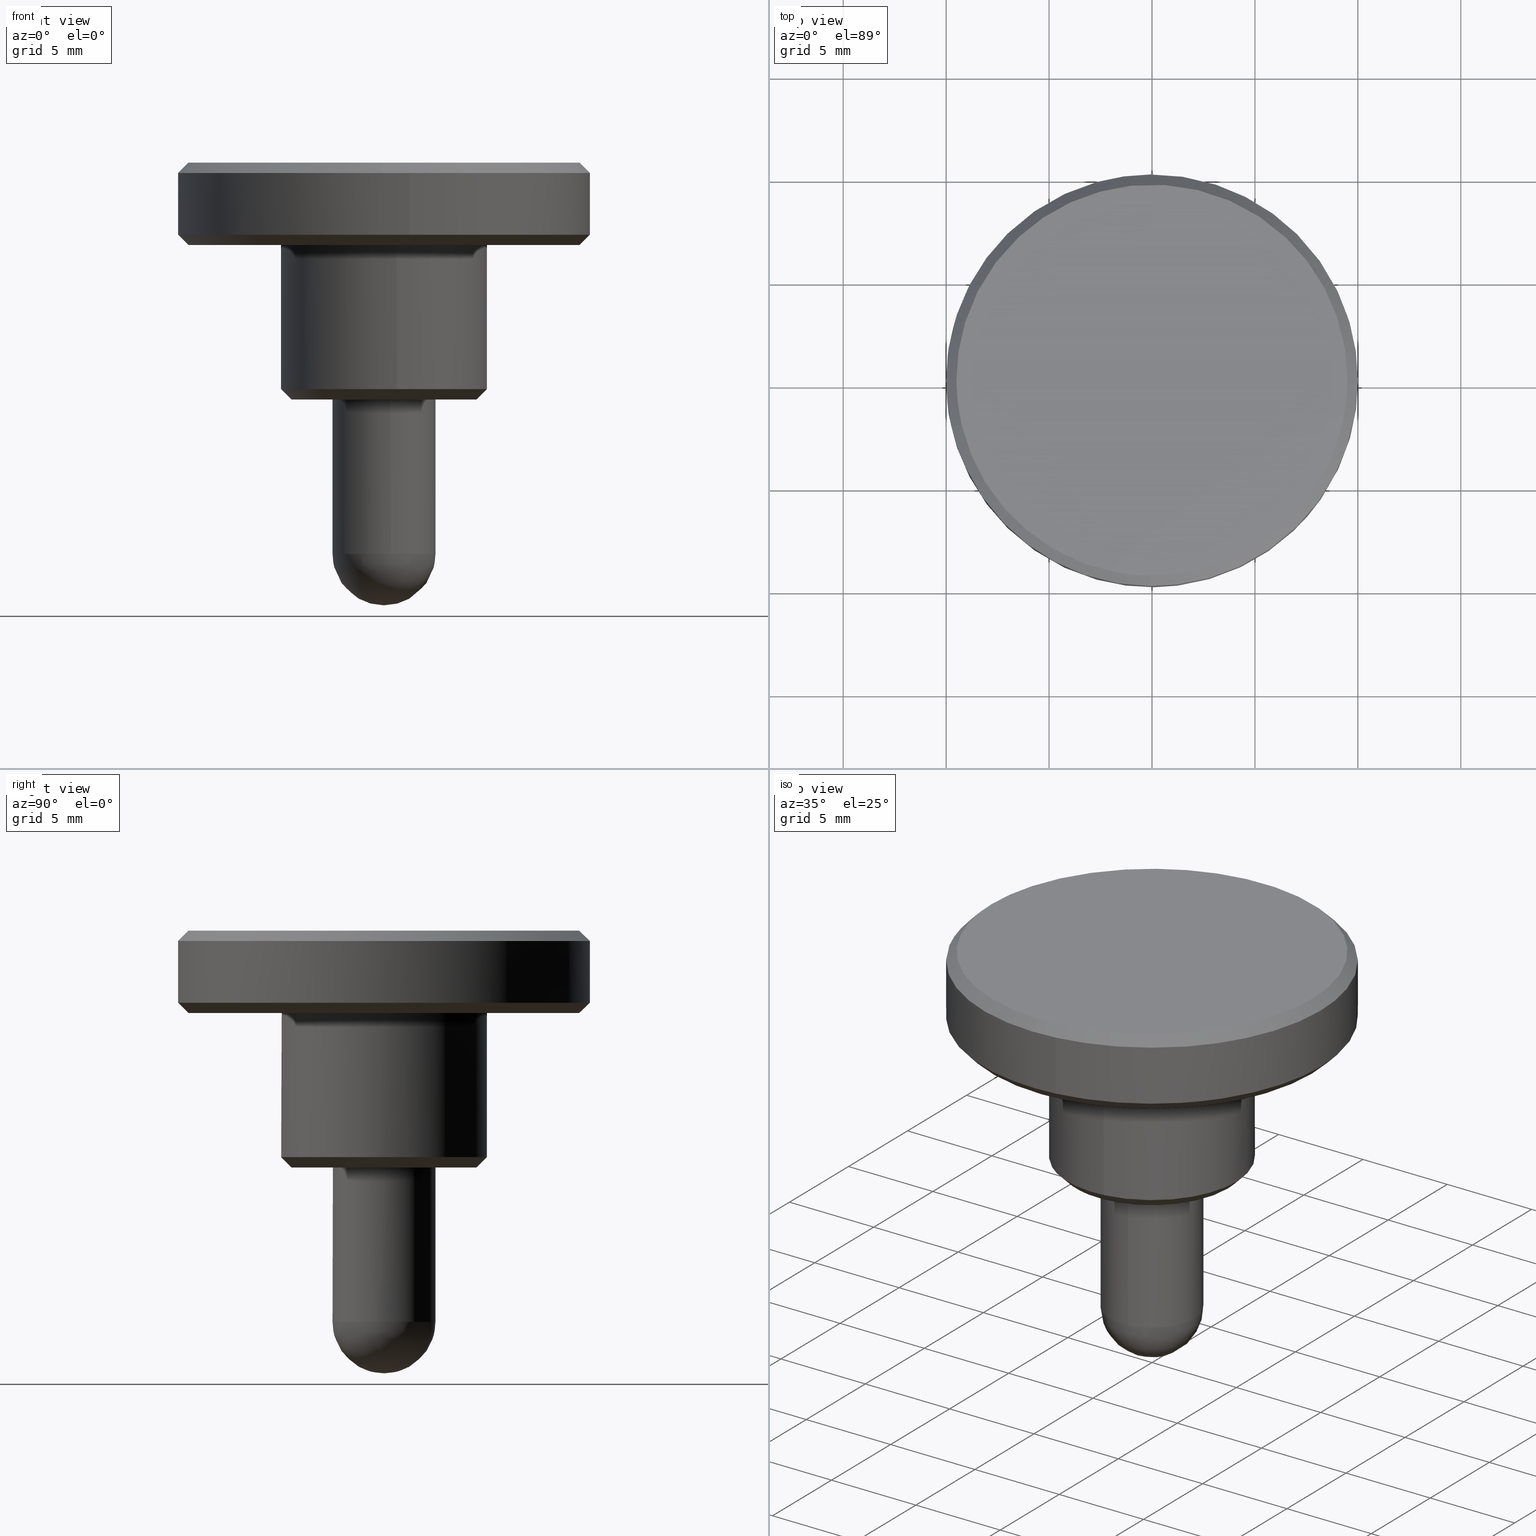
[diagram: canonical four-view strip — front | top / right | iso, engineering-drawing reading convention]
A machine part, canonical four-view strip (front | top / right | iso — engineering-drawing reading convention). The complete STEP part file that produces these views, byte-faithful:
ISO-10303-21;
HEADER;
/****************************************************************
 * Generated by software with PDE/Lib inside                    *
 * PDElib Version 4.4.1-0003, patched  Thursday August 19 11:58 *
 * International Technegroup Inc. (www.iti-oh.com)              *
 ****************************************************************/
FILE_DESCRIPTION((''),'2;1');
FILE_NAME('','2005-07-15T10:45:57',(''),(''),'','CADfix','');
FILE_SCHEMA(('AUTOMOTIVE_DESIGN'));
ENDSEC;
DATA;
#5=APPLICATION_CONTEXT('automotive design');
#6=APPLICATION_PROTOCOL_DEFINITION('Draft International Standard','automotive_design',1998,#5);
#7=PRODUCT_CONTEXT('None',#5,'mechanical');
#8=PRODUCT('knob','','None',(#7));
#9=PRODUCT_RELATED_PRODUCT_CATEGORY('part','description',(#8));
#10=PRODUCT_DEFINITION_FORMATION('None','None',#8);
#11=PRODUCT_DEFINITION_CONTEXT('part definition',#5,'design');
#12=PRODUCT_DEFINITION('None','None',#10,#11);
#18=(NAMED_UNIT(*)PLANE_ANGLE_UNIT()SI_UNIT($,.RADIAN.));
#19=DIMENSIONAL_EXPONENTS(0.0,0.0,0.0,0.0,0.0,0.0,0.0);
#20=PLANE_ANGLE_MEASURE_WITH_UNIT(PLANE_ANGLE_MEASURE(0.017453292500000),#18);
#24=(CONVERSION_BASED_UNIT('DEGREE',#20)NAMED_UNIT(#19)PLANE_ANGLE_UNIT());
#28=(NAMED_UNIT(*)SI_UNIT($,.STERADIAN.)SOLID_ANGLE_UNIT());
#32=(LENGTH_UNIT()NAMED_UNIT(*)SI_UNIT(.MILLI.,.METRE.));
#34=UNCERTAINTY_MEASURE_WITH_UNIT(LENGTH_MEASURE(0.001000000000000),#32,'DISTANCE_ACCURACY_VALUE','');
#36=(GEOMETRIC_REPRESENTATION_CONTEXT(3)GLOBAL_UNCERTAINTY_ASSIGNED_CONTEXT((#34))GLOBAL_UNIT_ASSIGNED_CONTEXT((#24,#28,#32))REPRESENTATION_CONTEXT('None','None'));
#37=AXIS2_PLACEMENT_3D('',#38,#39,#40);
#38=CARTESIAN_POINT('',(0.0,0.0,0.0));
#39=DIRECTION('',(0.0,0.0,1.0));
#40=DIRECTION('',(1.0,0.0,0.0));
#41=ADVANCED_BREP_SHAPE_REPRESENTATION('',(#37,#1164),#36);
#42=PRODUCT_DEFINITION_SHAPE('','',#12);
#43=SHAPE_DEFINITION_REPRESENTATION(#42,#41);
#44=CARTESIAN_POINT('',(-9.242894728281831,-2.140456327958789,11.512500000000115));
#45=CARTESIAN_POINT('',(-9.496966249899218,-1.043327506833363,11.512500000000115));
#46=CARTESIAN_POINT('',(-9.487138745071267,0.082793005540822,11.512500000000120));
#47=CARTESIAN_POINT('',(-9.404345739530445,9.569931750612090,11.512500000000120));
#48=CARTESIAN_POINT('',(0.082793005540822,9.487138745071267,11.512500000000120));
#49=CARTESIAN_POINT('',(9.569931750612090,9.404345739530445,11.512500000000120));
#50=CARTESIAN_POINT('',(9.487138745071267,-0.082793005540822,11.512500000000120));
#51=CARTESIAN_POINT('',(9.404345739530445,-9.569931750612090,11.512500000000120));
#52=CARTESIAN_POINT('',(-0.082793005540822,-9.487138745071267,11.512500000000120));
#53=CARTESIAN_POINT('',(-9.754663701873520,-2.258971054154414,10.987187500000111));
#54=CARTESIAN_POINT('',(-10.022802885804440,-1.101095409962056,10.987187500000115));
#55=CARTESIAN_POINT('',(-10.012431242780981,0.087377163719812,10.987187500000120));
#56=CARTESIAN_POINT('',(-9.925054079061164,10.099808406500786,10.987187500000116));
#57=CARTESIAN_POINT('',(0.087377163719812,10.012431242780981,10.987187500000120));
#58=CARTESIAN_POINT('',(10.099808406500786,9.925054079061164,10.987187500000116));
#59=CARTESIAN_POINT('',(10.012431242780981,-0.087377163719812,10.987187500000120));
#60=CARTESIAN_POINT('',(9.925054079061164,-10.099808406500786,10.987187500000116));
#61=CARTESIAN_POINT('',(-0.087377163719812,-10.012431242780981,10.987187500000120));
#69=(BOUNDED_SURFACE()B_SPLINE_SURFACE(2,1,((#44,#53),(#45,#54),(#46,#55),(#47,#56),(#48,#57),(#49,#58),(#50,#59),(#51,#60),(#52,#61)),.UNSPECIFIED.,.F.,.F.,.U.)B_SPLINE_SURFACE_WITH_KNOTS((3,2,2,2,3),(2,2),(0.0,2.654363350399271,19.244134290394701,35.833905230390137,52.423676170385569),(0.0,1.0),.UNSPECIFIED.)GEOMETRIC_REPRESENTATION_ITEM()RATIONAL_B_SPLINE_SURFACE(((0.921270302782944,0.921270302782944),(0.953137084989848,0.953137084989848),(1.0,1.0),(0.707106781186548,0.707106781186548),(1.0,1.0),(0.707106781186548,0.707106781186548),(1.0,1.0),(0.707106781186548,0.707106781186548),(1.0,1.0)))REPRESENTATION_ITEM('')SURFACE());
#70=CARTESIAN_POINT('',(-9.742181531784778,-2.256080451086446,10.999999999998970));
#71=VERTEX_POINT('',#70);
#72=CARTESIAN_POINT('',(-10.0,0.0,11.000000000000121));
#73=VERTEX_POINT('',#72);
#74=CARTESIAN_POINT('',(-9.742181531784778,-2.256080451086447,10.999999999998973));
#75=CARTESIAN_POINT('',(-10.000000000000002,-1.142771606807493,11.000000000000124));
#76=CARTESIAN_POINT('',(-10.0,0.0,11.000000000000121));
#84=(BOUNDED_CURVE()B_SPLINE_CURVE(2,(#74,#75,#76),.UNSPECIFIED.,.F.,.U.)B_SPLINE_CURVE_WITH_KNOTS((3,3),(0.961422971784283,1.0),.UNSPECIFIED.)CURVE()GEOMETRIC_REPRESENTATION_ITEM()RATIONAL_B_SPLINE_CURVE((0.923556557442257,0.954804200134566,1.0))REPRESENTATION_ITEM(''));
#85=EDGE_CURVE('',#71,#73,#84,.T.);
#86=ORIENTED_EDGE('',*,*,#85,.F.);
#87=CARTESIAN_POINT('',(-9.255072455196380,-2.143276428524653,11.499999999999879));
#88=VERTEX_POINT('',#87);
#89=CARTESIAN_POINT('',(-9.255072455196380,-2.143276428524653,11.499999999999879));
#90=CARTESIAN_POINT('',(-9.742181531784778,-2.256080451086446,10.999999999998970));
#91=QUASI_UNIFORM_CURVE('',1,(#89,#90),.UNSPECIFIED.,.F.,.U.);
#92=EDGE_CURVE('',#88,#71,#91,.T.);
#93=ORIENTED_EDGE('',*,*,#92,.F.);
#94=CARTESIAN_POINT('',(-9.500000000000000,0.0,11.500000000000121));
#95=VERTEX_POINT('',#94);
#96=CARTESIAN_POINT('',(-9.500000000000000,0.0,11.500000000000121));
#97=CARTESIAN_POINT('',(-9.500000000000000,-1.085633026459575,11.500000000000124));
#98=CARTESIAN_POINT('',(-9.255072455196382,-2.143276428524653,11.499999999999876));
#106=(BOUNDED_CURVE()B_SPLINE_CURVE(2,(#96,#97,#98),.UNSPECIFIED.,.F.,.U.)B_SPLINE_CURVE_WITH_KNOTS((3,3),(0.500000000000000,0.538577028215461),.UNSPECIFIED.)CURVE()GEOMETRIC_REPRESENTATION_ITEM()RATIONAL_B_SPLINE_CURVE((1.0,0.954804200134865,0.923556557442672))REPRESENTATION_ITEM(''));
#107=EDGE_CURVE('',#95,#88,#106,.T.);
#108=ORIENTED_EDGE('',*,*,#107,.F.);
#109=CARTESIAN_POINT('',(9.500000000000000,0.0,11.500000000000121));
#110=VERTEX_POINT('',#109);
#111=CARTESIAN_POINT('',(9.500000000000000,0.0,11.500000000000121));
#112=CARTESIAN_POINT('',(9.500000000000000,9.500000000000000,11.500000000000119));
#113=CARTESIAN_POINT('',(0.0,9.500000000000000,11.500000000000121));
#114=CARTESIAN_POINT('',(-9.500000000000000,9.500000000000000,11.500000000000119));
#115=CARTESIAN_POINT('',(-9.500000000000000,0.0,11.500000000000121));
#123=(BOUNDED_CURVE()B_SPLINE_CURVE(2,(#111,#112,#113,#114,#115),.UNSPECIFIED.,.F.,.U.)B_SPLINE_CURVE_WITH_KNOTS((3,2,3),(0.0,0.250000000000000,0.500000000000000),.UNSPECIFIED.)CURVE()GEOMETRIC_REPRESENTATION_ITEM()RATIONAL_B_SPLINE_CURVE((1.0,0.707106781186548,1.0,0.707106781186548,1.0))REPRESENTATION_ITEM(''));
#124=EDGE_CURVE('',#110,#95,#123,.T.);
#125=ORIENTED_EDGE('',*,*,#124,.F.);
#126=CARTESIAN_POINT('',(-0.082902087252672,-9.499638269111923,11.499999999997639));
#127=VERTEX_POINT('',#126);
#128=CARTESIAN_POINT('',(-0.082902087252672,-9.499638269111923,11.499999999997637));
#129=CARTESIAN_POINT('',(-0.041451832814764,-9.500000000000000,11.500000000000124));
#130=CARTESIAN_POINT('',(0.0,-9.500000000000000,11.500000000000121));
#131=CARTESIAN_POINT('',(9.500000000000000,-9.500000000000000,11.500000000000119));
#132=CARTESIAN_POINT('',(9.500000000000000,0.0,11.500000000000121));
#140=(BOUNDED_CURVE()B_SPLINE_CURVE(2,(#128,#129,#130,#131,#132),.UNSPECIFIED.,.F.,.U.)B_SPLINE_CURVE_WITH_KNOTS((3,2,3),(0.748460105664342,0.750000000000000,1.0),.UNSPECIFIED.)CURVE()GEOMETRIC_REPRESENTATION_ITEM()RATIONAL_B_SPLINE_CURVE((0.996414028098852,0.998195901565586,1.0,0.707106781186548,1.0))REPRESENTATION_ITEM(''));
#141=EDGE_CURVE('',#127,#110,#140,.T.);
#142=ORIENTED_EDGE('',*,*,#141,.F.);
#143=CARTESIAN_POINT('',(-0.087265355013846,-9.999619230645545,10.999999999996030));
#144=VERTEX_POINT('',#143);
#145=CARTESIAN_POINT('',(-0.082902087252672,-9.499638269111923,11.499999999997639));
#146=CARTESIAN_POINT('',(-0.087265355013846,-9.999619230645545,10.999999999996030));
#147=QUASI_UNIFORM_CURVE('',1,(#145,#146),.UNSPECIFIED.,.F.,.U.);
#148=EDGE_CURVE('',#127,#144,#147,.T.);
#149=ORIENTED_EDGE('',*,*,#148,.T.);
#150=CARTESIAN_POINT('',(1.241278290749142,-9.922662354676380,11.000000000000099));
#151=VERTEX_POINT('',#150);
#152=CARTESIAN_POINT('',(1.241278290749142,-9.922662354676380,11.000000000000099));
#153=CARTESIAN_POINT('',(0.623048400184220,-10.0,11.000000000000117));
#154=CARTESIAN_POINT('',(0.0,-10.0,11.000000000000121));
#155=CARTESIAN_POINT('',(-0.043633508237107,-10.0,11.000000000000119));
#156=CARTESIAN_POINT('',(-0.087265355013846,-9.999619230645545,10.999999999996028));
#164=(BOUNDED_CURVE()B_SPLINE_CURVE(2,(#152,#153,#154,#155,#156),.UNSPECIFIED.,.F.,.U.)B_SPLINE_CURVE_WITH_KNOTS((3,2,3),(0.728526100433277,0.750000000000000,0.751539894336047),.UNSPECIFIED.)CURVE()GEOMETRIC_REPRESENTATION_ITEM()RATIONAL_B_SPLINE_CURVE((0.954005487336481,0.974841761741703,1.0,0.998195901565130,0.996414028097953))REPRESENTATION_ITEM(''));
#165=EDGE_CURVE('',#151,#144,#164,.T.);
#166=ORIENTED_EDGE('',*,*,#165,.F.);
#167=CARTESIAN_POINT('',(10.0,0.0,11.000000000000121));
#168=VERTEX_POINT('',#167);
#169=CARTESIAN_POINT('',(10.0,0.0,11.000000000000121));
#170=CARTESIAN_POINT('',(9.999999999999998,-8.826987552511923,11.000000000000119));
#171=CARTESIAN_POINT('',(1.241278290749142,-9.922662354676380,11.000000000000099));
#179=(BOUNDED_CURVE()B_SPLINE_CURVE(2,(#169,#170,#171),.UNSPECIFIED.,.F.,.U.)B_SPLINE_CURVE_WITH_KNOTS((3,3),(0.500000000000000,0.728526100433277),.UNSPECIFIED.)CURVE()GEOMETRIC_REPRESENTATION_ITEM()RATIONAL_B_SPLINE_CURVE((1.0,0.732265019444844,0.954005487336481))REPRESENTATION_ITEM(''));
#180=EDGE_CURVE('',#168,#151,#179,.T.);
#181=ORIENTED_EDGE('',*,*,#180,.F.);
#182=CARTESIAN_POINT('',(-0.087258805515290,9.999619287793767,11.000000000000149));
#183=VERTEX_POINT('',#182);
#184=CARTESIAN_POINT('',(-0.087258805515290,9.999619287793767,11.000000000000151));
#185=CARTESIAN_POINT('',(-0.043630233285768,10.000000000000002,11.000000000000121));
#186=CARTESIAN_POINT('',(0.0,10.0,11.000000000000121));
#187=CARTESIAN_POINT('',(10.000000000000002,10.000000000000002,11.000000000000119));
#188=CARTESIAN_POINT('',(10.0,0.0,11.000000000000121));
#196=(BOUNDED_CURVE()B_SPLINE_CURVE(2,(#184,#185,#186,#187,#188),.UNSPECIFIED.,.F.,.U.)B_SPLINE_CURVE_WITH_KNOTS((3,2,3),(0.248460221033578,0.250000000000000,0.500000000000000),.UNSPECIFIED.)CURVE()GEOMETRIC_REPRESENTATION_ITEM()RATIONAL_B_SPLINE_CURVE((0.996414295095714,0.998196036729054,1.0,0.707106781186548,1.0))REPRESENTATION_ITEM(''));
#197=EDGE_CURVE('',#183,#168,#196,.T.);
#198=ORIENTED_EDGE('',*,*,#197,.F.);
#199=CARTESIAN_POINT('',(-10.0,0.0,11.000000000000121));
#200=CARTESIAN_POINT('',(-9.999999999999998,9.913118599007813,11.000000000000121));
#201=CARTESIAN_POINT('',(-0.087258805515290,9.999619287793767,11.000000000000151));
#209=(BOUNDED_CURVE()B_SPLINE_CURVE(2,(#199,#200,#201),.UNSPECIFIED.,.F.,.U.)B_SPLINE_CURVE_WITH_KNOTS((3,3),(0.0,0.248460221033578),.UNSPECIFIED.)CURVE()GEOMETRIC_REPRESENTATION_ITEM()RATIONAL_B_SPLINE_CURVE((1.0,0.708910744457494,0.996414295095714))REPRESENTATION_ITEM(''));
#210=EDGE_CURVE('',#73,#183,#209,.T.);
#211=ORIENTED_EDGE('',*,*,#210,.F.);
#212=EDGE_LOOP('',(#86,#93,#108,#125,#142,#149,#166,#181,#198,#211));
#213=FACE_OUTER_BOUND('',#212,.T.);
#214=ADVANCED_FACE('',(#213),#69,.T.);
#215=CARTESIAN_POINT('',(-0.082793005540822,-9.487138745071267,11.512500000000120));
#216=CARTESIAN_POINT('',(-7.556664895367825,-9.421915253203679,11.512500000000120));
#217=CARTESIAN_POINT('',(-9.242894728281831,-2.140456327958789,11.512500000000115));
#218=CARTESIAN_POINT('',(-0.087377163719812,-10.012431242780981,10.987187500000120));
#219=CARTESIAN_POINT('',(-7.975069167077800,-9.943596397493447,10.987187500000118));
#220=CARTESIAN_POINT('',(-9.754663701873520,-2.258971054154414,10.987187500000111));
#228=(BOUNDED_SURFACE()B_SPLINE_SURFACE(2,1,((#215,#218),(#216,#219),(#217,#220)),.UNSPECIFIED.,.F.,.F.,.U.)B_SPLINE_SURFACE_WITH_KNOTS((3,3),(2,2),(0.0,13.874467244310500),(0.0,1.0),.UNSPECIFIED.)GEOMETRIC_REPRESENTATION_ITEM()RATIONAL_B_SPLINE_SURFACE(((1.0,1.0),(0.753969696196700,0.753969696196700),(0.921270302782944,0.921270302782944)))REPRESENTATION_ITEM('')SURFACE());
#229=CARTESIAN_POINT('',(-0.087265355013846,-9.999619230645545,10.999999999996021));
#230=CARTESIAN_POINT('',(-7.964864184835776,-9.930872467097576,11.000000000000117));
#231=CARTESIAN_POINT('',(-9.742181531784778,-2.256080451086446,10.999999999998973));
#239=(BOUNDED_CURVE()B_SPLINE_CURVE(2,(#229,#230,#231),.UNSPECIFIED.,.F.,.U.)B_SPLINE_CURVE_WITH_KNOTS((3,3),(0.751539894336047,0.961422971784283),.UNSPECIFIED.)CURVE()GEOMETRIC_REPRESENTATION_ITEM()RATIONAL_B_SPLINE_CURVE((0.996414028097954,0.753549905437045,0.923556557442256))REPRESENTATION_ITEM(''));
#240=EDGE_CURVE('',#144,#71,#239,.T.);
#241=ORIENTED_EDGE('',*,*,#240,.F.);
#242=ORIENTED_EDGE('',*,*,#148,.F.);
#243=CARTESIAN_POINT('',(-9.255072455196380,-2.143276428524653,11.499999999999874));
#244=CARTESIAN_POINT('',(-7.566620975602279,-9.434328843759149,11.500000000000119));
#245=CARTESIAN_POINT('',(-0.082902087252672,-9.499638269111923,11.499999999997639));
#253=(BOUNDED_CURVE()B_SPLINE_CURVE(2,(#243,#244,#245),.UNSPECIFIED.,.F.,.U.)B_SPLINE_CURVE_WITH_KNOTS((3,3),(0.538577028215460,0.748460105664342),.UNSPECIFIED.)CURVE()GEOMETRIC_REPRESENTATION_ITEM()RATIONAL_B_SPLINE_CURVE((0.923556557442673,0.753549905436432,0.996414028098854))REPRESENTATION_ITEM(''));
#254=EDGE_CURVE('',#88,#127,#253,.T.);
#255=ORIENTED_EDGE('',*,*,#254,.F.);
#256=ORIENTED_EDGE('',*,*,#92,.T.);
#257=EDGE_LOOP('',(#241,#242,#255,#256));
#258=FACE_OUTER_BOUND('',#257,.T.);
#259=ADVANCED_FACE('',(#258),#228,.T.);
#260=CARTESIAN_POINT('',(7.768992244344123,-5.445678631476790,7.487500000000110));
#261=CARTESIAN_POINT('',(9.513663739762109,-2.956670330751032,7.487500000000109));
#262=CARTESIAN_POINT('',(9.487138745071432,0.082793005540823,7.487500000000109));
#263=CARTESIAN_POINT('',(9.404345739530609,9.569931750612255,7.487500000000108));
#264=CARTESIAN_POINT('',(-0.082793005540823,9.487138745071432,7.487500000000109));
#265=CARTESIAN_POINT('',(-9.569931750612255,9.404345739530609,7.487500000000108));
#266=CARTESIAN_POINT('',(-9.487138745071432,-0.082793005540823,7.487500000000109));
#267=CARTESIAN_POINT('',(-9.404345739530609,-9.569931750612255,7.487500000000108));
#268=CARTESIAN_POINT('',(0.082793005540823,-9.487138745071432,7.487500000000109));
#269=CARTESIAN_POINT('',(8.199152849177494,-5.747199902211689,8.012812500000122));
#270=CARTESIAN_POINT('',(10.040424897421479,-3.120377933715196,8.012812500000120));
#271=CARTESIAN_POINT('',(10.012431242781030,0.087377163719812,8.012812500000120));
#272=CARTESIAN_POINT('',(9.925054079061219,10.099808406500845,8.012812500000120));
#273=CARTESIAN_POINT('',(-0.087377163719812,10.012431242781030,8.012812500000120));
#274=CARTESIAN_POINT('',(-10.099808406500845,9.925054079061219,8.012812500000120));
#275=CARTESIAN_POINT('',(-10.012431242781030,-0.087377163719812,8.012812500000120));
#276=CARTESIAN_POINT('',(-9.925054079061219,-10.099808406500845,8.012812500000120));
#277=CARTESIAN_POINT('',(0.087377163719812,-10.012431242781030,8.012812500000120));
#285=(BOUNDED_SURFACE()B_SPLINE_SURFACE(2,1,((#260,#269),(#261,#270),(#262,#271),(#263,#272),(#264,#273),(#265,#274),(#266,#275),(#267,#276),(#268,#277)),.UNSPECIFIED.,.F.,.F.,.U.)B_SPLINE_SURFACE_WITH_KNOTS((3,2,2,2,3),(2,2),(0.0,6.635908375998208,23.225679315993730,39.815450255989262,56.405221195984772),(0.0,1.0),.UNSPECIFIED.)GEOMETRIC_REPRESENTATION_ITEM()RATIONAL_B_SPLINE_SURFACE(((0.859411254969543,0.859411254969543),(0.882842712474619,0.882842712474619),(1.0,1.0),(0.707106781186548,0.707106781186548),(1.0,1.0),(0.707106781186548,0.707106781186548),(1.0,1.0),(0.707106781186548,0.707106781186548),(1.0,1.0)))REPRESENTATION_ITEM('')SURFACE());
#286=CARTESIAN_POINT('',(9.500000000000000,0.0,7.500000000000110));
#287=VERTEX_POINT('',#286);
#288=CARTESIAN_POINT('',(7.779228070752922,-5.452853438632870,7.500000000000085));
#289=VERTEX_POINT('',#288);
#290=CARTESIAN_POINT('',(9.500000000000000,0.0,7.500000000000110));
#291=CARTESIAN_POINT('',(9.500000000000000,-2.997941080174381,7.500000000000110));
#292=CARTESIAN_POINT('',(7.779228070752922,-5.452853438632869,7.500000000000085));
#300=(BOUNDED_CURVE()B_SPLINE_CURVE(2,(#290,#291,#292),.UNSPECIFIED.,.F.,.U.)B_SPLINE_CURVE_WITH_KNOTS((3,3),(0.0,0.098673726202873),.UNSPECIFIED.)CURVE()GEOMETRIC_REPRESENTATION_ITEM()RATIONAL_B_SPLINE_CURVE((1.0,0.884396538880492,0.860049271925871))REPRESENTATION_ITEM(''));
#301=EDGE_CURVE('',#287,#289,#300,.T.);
#302=ORIENTED_EDGE('',*,*,#301,.F.);
#303=CARTESIAN_POINT('',(-9.500000000000000,0.0,7.500000000000110));
#304=VERTEX_POINT('',#303);
#305=CARTESIAN_POINT('',(-9.500000000000000,0.0,7.500000000000110));
#306=CARTESIAN_POINT('',(-9.500000000000000,9.500000000000000,7.500000000000110));
#307=CARTESIAN_POINT('',(0.0,9.500000000000000,7.500000000000110));
#308=CARTESIAN_POINT('',(9.500000000000000,9.500000000000000,7.500000000000110));
#309=CARTESIAN_POINT('',(9.500000000000000,0.0,7.500000000000110));
#317=(BOUNDED_CURVE()B_SPLINE_CURVE(2,(#305,#306,#307,#308,#309),.UNSPECIFIED.,.F.,.U.)B_SPLINE_CURVE_WITH_KNOTS((3,2,3),(0.500000000000000,0.750000000000000,1.0),.UNSPECIFIED.)CURVE()GEOMETRIC_REPRESENTATION_ITEM()RATIONAL_B_SPLINE_CURVE((1.0,0.707106781186548,1.0,0.707106781186548,1.0))REPRESENTATION_ITEM(''));
#318=EDGE_CURVE('',#304,#287,#317,.T.);
#319=ORIENTED_EDGE('',*,*,#318,.F.);
#320=CARTESIAN_POINT('',(0.082902087252670,-9.499638269111962,7.500000000002550));
#321=VERTEX_POINT('',#320);
#322=CARTESIAN_POINT('',(0.082902087252670,-9.499638269111962,7.500000000002550));
#323=CARTESIAN_POINT('',(0.041451832814762,-9.499999999999998,7.500000000000109));
#324=CARTESIAN_POINT('',(0.0,-9.500000000000000,7.500000000000110));
#325=CARTESIAN_POINT('',(-9.500000000000000,-9.500000000000000,7.500000000000110));
#326=CARTESIAN_POINT('',(-9.500000000000000,0.0,7.500000000000110));
#334=(BOUNDED_CURVE()B_SPLINE_CURVE(2,(#322,#323,#324,#325,#326),.UNSPECIFIED.,.F.,.U.)B_SPLINE_CURVE_WITH_KNOTS((3,2,3),(0.248460105664342,0.250000000000000,0.500000000000000),.UNSPECIFIED.)CURVE()GEOMETRIC_REPRESENTATION_ITEM()RATIONAL_B_SPLINE_CURVE((0.996414028098853,0.998195901565586,1.0,0.707106781186548,1.0))REPRESENTATION_ITEM(''));
#335=EDGE_CURVE('',#321,#304,#334,.T.);
#336=ORIENTED_EDGE('',*,*,#335,.F.);
#337=CARTESIAN_POINT('',(0.087265354984036,-9.999619230641766,8.000000000000146));
#338=VERTEX_POINT('',#337);
#339=CARTESIAN_POINT('',(0.082902087252670,-9.499638269111962,7.500000000002550));
#340=CARTESIAN_POINT('',(0.087265354984036,-9.999619230641766,8.000000000000146));
#341=QUASI_UNIFORM_CURVE('',1,(#339,#340),.UNSPECIFIED.,.F.,.U.);
#342=EDGE_CURVE('',#321,#338,#341,.T.);
#343=ORIENTED_EDGE('',*,*,#342,.T.);
#344=CARTESIAN_POINT('',(-10.0,0.0,8.000000000000119));
#345=VERTEX_POINT('',#344);
#346=CARTESIAN_POINT('',(-10.0,0.0,8.000000000000119));
#347=CARTESIAN_POINT('',(-10.000000000000002,-10.000000000000002,8.000000000000119));
#348=CARTESIAN_POINT('',(0.0,-10.0,8.000000000000119));
#349=CARTESIAN_POINT('',(0.043633508207315,-9.999999999999998,8.000000000000119));
#350=CARTESIAN_POINT('',(0.087265354984036,-9.999619230641766,8.000000000000146));
#358=(BOUNDED_CURVE()B_SPLINE_CURVE(2,(#346,#347,#348,#349,#350),.UNSPECIFIED.,.F.,.U.)B_SPLINE_CURVE_WITH_KNOTS((3,2,3),(0.0,0.250000000000000,0.251539894334998),.UNSPECIFIED.)CURVE()GEOMETRIC_REPRESENTATION_ITEM()RATIONAL_B_SPLINE_CURVE((1.0,0.707106781186548,1.0,0.998195901566360,0.996414028100381))REPRESENTATION_ITEM(''));
#359=EDGE_CURVE('',#345,#338,#358,.T.);
#360=ORIENTED_EDGE('',*,*,#359,.F.);
#361=CARTESIAN_POINT('',(-0.087258337325771,9.999619291878959,8.000000000000119));
#362=VERTEX_POINT('',#361);
#363=CARTESIAN_POINT('',(-0.087258337325771,9.999619291878959,8.000000000000119));
#364=CARTESIAN_POINT('',(-10.0,9.913119063164983,8.000000000000119));
#365=CARTESIAN_POINT('',(-10.0,0.0,8.000000000000119));
#373=(BOUNDED_CURVE()B_SPLINE_CURVE(2,(#363,#364,#365),.UNSPECIFIED.,.F.,.U.)B_SPLINE_CURVE_WITH_KNOTS((3,3),(0.751539770719286,1.0),.UNSPECIFIED.)CURVE()GEOMETRIC_REPRESENTATION_ITEM()RATIONAL_B_SPLINE_CURVE((0.996414314181917,0.708910734795373,1.0))REPRESENTATION_ITEM(''));
#374=EDGE_CURVE('',#362,#345,#373,.T.);
#375=ORIENTED_EDGE('',*,*,#374,.F.);
#376=CARTESIAN_POINT('',(10.0,0.0,8.000000000000119));
#377=VERTEX_POINT('',#376);
#378=CARTESIAN_POINT('',(10.0,0.0,8.000000000000119));
#379=CARTESIAN_POINT('',(10.000000000000002,10.000000000000002,8.000000000000119));
#380=CARTESIAN_POINT('',(0.0,10.0,8.000000000000119));
#381=CARTESIAN_POINT('',(-0.043629999177642,10.000000000000002,8.000000000000119));
#382=CARTESIAN_POINT('',(-0.087258337325771,9.999619291878959,8.000000000000119));
#390=(BOUNDED_CURVE()B_SPLINE_CURVE(2,(#378,#379,#380,#381,#382),.UNSPECIFIED.,.F.,.U.)B_SPLINE_CURVE_WITH_KNOTS((3,2,3),(0.500000000000000,0.750000000000000,0.751539770719286),.UNSPECIFIED.)CURVE()GEOMETRIC_REPRESENTATION_ITEM()RATIONAL_B_SPLINE_CURVE((1.0,0.707106781186548,1.0,0.998196046391175,0.996414314181917))REPRESENTATION_ITEM(''));
#391=EDGE_CURVE('',#377,#362,#390,.T.);
#392=ORIENTED_EDGE('',*,*,#391,.F.);
#393=CARTESIAN_POINT('',(8.188661127107650,-5.739845724877757,8.000000000000160));
#394=VERTEX_POINT('',#393);
#395=CARTESIAN_POINT('',(8.188661127107650,-5.739845724877757,8.000000000000160));
#396=CARTESIAN_POINT('',(10.000000000000002,-3.155727452816521,8.000000000000119));
#397=CARTESIAN_POINT('',(10.0,0.0,8.000000000000119));
#405=(BOUNDED_CURVE()B_SPLINE_CURVE(2,(#395,#396,#397),.UNSPECIFIED.,.F.,.U.)B_SPLINE_CURVE_WITH_KNOTS((3,3),(0.401326273797088,0.500000000000000),.UNSPECIFIED.)CURVE()GEOMETRIC_REPRESENTATION_ITEM()RATIONAL_B_SPLINE_CURVE((0.860049271925852,0.884396538880448,1.0))REPRESENTATION_ITEM(''));
#406=EDGE_CURVE('',#394,#377,#405,.T.);
#407=ORIENTED_EDGE('',*,*,#406,.F.);
#408=CARTESIAN_POINT('',(7.779228070752922,-5.452853438632870,7.500000000000085));
#409=CARTESIAN_POINT('',(8.188661127107650,-5.739845724877757,8.000000000000160));
#410=QUASI_UNIFORM_CURVE('',1,(#408,#409),.UNSPECIFIED.,.F.,.U.);
#411=EDGE_CURVE('',#289,#394,#410,.T.);
#412=ORIENTED_EDGE('',*,*,#411,.F.);
#413=EDGE_LOOP('',(#302,#319,#336,#343,#360,#375,#392,#407,#412));
#414=FACE_OUTER_BOUND('',#413,.T.);
#415=ADVANCED_FACE('',(#414),#285,.T.);
#416=CARTESIAN_POINT('',(0.082793005540823,-9.487138745071432,7.487500000000109));
#417=CARTESIAN_POINT('',(4.966000022812007,-9.444523643036803,7.487500000000109));
#418=CARTESIAN_POINT('',(7.768992244344123,-5.445678631476790,7.487500000000110));
#419=CARTESIAN_POINT('',(0.087377163719812,-10.012431242781030,8.012812500000120));
#420=CARTESIAN_POINT('',(5.240962013534870,-9.967456589148238,8.012812500000120));
#421=CARTESIAN_POINT('',(8.199152849177494,-5.747199902211689,8.012812500000122));
#429=(BOUNDED_SURFACE()B_SPLINE_SURFACE(2,1,((#416,#419),(#417,#420),(#418,#421)),.UNSPECIFIED.,.F.,.F.,.U.)B_SPLINE_SURFACE_WITH_KNOTS((3,3),(2,2),(0.0,9.886015678606006),(0.0,1.0),.UNSPECIFIED.)GEOMETRIC_REPRESENTATION_ITEM()RATIONAL_B_SPLINE_SURFACE(((1.0,1.0),(0.824264068711928,0.824264068711928),(0.859411254969543,0.859411254969543)))REPRESENTATION_ITEM('')SURFACE());
#430=CARTESIAN_POINT('',(7.779228070752922,-5.452853438632870,7.500000000000085));
#431=CARTESIAN_POINT('',(4.972542842354439,-9.456967020676762,7.500000000000111));
#432=CARTESIAN_POINT('',(0.082902087252670,-9.499638269111962,7.500000000002550));
#440=(BOUNDED_CURVE()B_SPLINE_CURVE(2,(#430,#431,#432),.UNSPECIFIED.,.F.,.U.)B_SPLINE_CURVE_WITH_KNOTS((3,3),(0.098673726202873,0.248460105664342),.UNSPECIFIED.)CURVE()GEOMETRIC_REPRESENTATION_ITEM()RATIONAL_B_SPLINE_CURVE((0.860049271925871,0.823090203820786,0.996414028098853))REPRESENTATION_ITEM(''));
#441=EDGE_CURVE('',#289,#321,#440,.T.);
#442=ORIENTED_EDGE('',*,*,#441,.F.);
#443=ORIENTED_EDGE('',*,*,#411,.T.);
#444=CARTESIAN_POINT('',(1.241273483490002,-9.922662956038625,8.000000000000119));
#445=VERTEX_POINT('',#444);
#446=CARTESIAN_POINT('',(1.241273483490001,-9.922662956038625,8.000000000000119));
#447=CARTESIAN_POINT('',(5.642649241165003,-9.372073760067680,8.000000000000121));
#448=CARTESIAN_POINT('',(8.188661127107650,-5.739845724877757,8.000000000000160));
#456=(BOUNDED_CURVE()B_SPLINE_CURVE(2,(#446,#447,#448),.UNSPECIFIED.,.F.,.U.)B_SPLINE_CURVE_WITH_KNOTS((3,3),(0.271473817862368,0.401326273797088),.UNSPECIFIED.)CURVE()GEOMETRIC_REPRESENTATION_ITEM()RATIONAL_B_SPLINE_CURVE((0.954005645893153,0.828008803495067,0.860049271925852))REPRESENTATION_ITEM(''));
#457=EDGE_CURVE('',#445,#394,#456,.T.);
#458=ORIENTED_EDGE('',*,*,#457,.F.);
#459=CARTESIAN_POINT('',(0.087265354984036,-9.999619230641766,8.000000000000146));
#460=CARTESIAN_POINT('',(0.666498284524844,-9.994564341445518,8.000000000000119));
#461=CARTESIAN_POINT('',(1.241273483490001,-9.922662956038625,8.000000000000119));
#469=(BOUNDED_CURVE()B_SPLINE_CURVE(2,(#459,#460,#461),.UNSPECIFIED.,.F.,.U.)B_SPLINE_CURVE_WITH_KNOTS((3,3),(0.251539894334998,0.271473817862368),.UNSPECIFIED.)CURVE()GEOMETRIC_REPRESENTATION_ITEM()RATIONAL_B_SPLINE_CURVE((0.996414028100381,0.973347686080027,0.954005645893153))REPRESENTATION_ITEM(''));
#470=EDGE_CURVE('',#338,#445,#469,.T.);
#471=ORIENTED_EDGE('',*,*,#470,.F.);
#472=ORIENTED_EDGE('',*,*,#342,.F.);
#473=EDGE_LOOP('',(#442,#443,#458,#471,#472));
#474=FACE_OUTER_BOUND('',#473,.T.);
#475=ADVANCED_FACE('',(#474),#429,.T.);
#476=CARTESIAN_POINT('',(-1.813916751045586,-4.104553845459481,-0.012499999999999));
#477=CARTESIAN_POINT('',(-0.928656247279884,-4.495775137049067,-0.012499999999999));
#478=CARTESIAN_POINT('',(0.039160328048953,-4.487329129750467,-0.012499999999999));
#479=CARTESIAN_POINT('',(4.526489457799420,-4.448168801701514,-0.012499999999999));
#480=CARTESIAN_POINT('',(4.487329129750467,0.039160328048953,-0.012499999999999));
#481=CARTESIAN_POINT('',(4.448168801701514,4.526489457799420,-0.012499999999999));
#482=CARTESIAN_POINT('',(-0.039160328048953,4.487329129750467,-0.012499999999999));
#483=CARTESIAN_POINT('',(-2.026256170161715,-4.585038177925872,0.512812499999944));
#484=CARTESIAN_POINT('',(-1.037365937508121,-5.022056335195270,0.512812499999944));
#485=CARTESIAN_POINT('',(0.043744486227942,-5.012621627460113,0.512812499999944));
#486=CARTESIAN_POINT('',(5.056366113688056,-4.968877141232172,0.512812499999944));
#487=CARTESIAN_POINT('',(5.012621627460113,0.043744486227942,0.512812499999944));
#488=CARTESIAN_POINT('',(4.968877141232172,5.056366113688056,0.512812499999944));
#489=CARTESIAN_POINT('',(-0.043744486227942,5.012621627460113,0.512812499999944));
#497=(BOUNDED_SURFACE()B_SPLINE_SURFACE(2,1,((#476,#483),(#477,#484),(#478,#485),(#479,#486),(#480,#487),(#481,#488),(#482,#489)),.UNSPECIFIED.,.F.,.F.,.U.)B_SPLINE_SURFACE_WITH_KNOTS((3,2,2,3),(2,2),(0.0,2.325539913909386,10.631039606442901,18.936539298976420),(0.0,1.0),.UNSPECIFIED.)GEOMETRIC_REPRESENTATION_ITEM()RATIONAL_B_SPLINE_SURFACE(((0.881905454174416,0.881905454174416),(0.917989898732233,0.917989898732233),(1.0,1.0),(0.707106781186548,0.707106781186548),(1.0,1.0),(0.707106781186548,0.707106781186548),(1.0,1.0)))REPRESENTATION_ITEM('')SURFACE());
#498=CARTESIAN_POINT('',(-2.021077159942054,-4.573319047864791,0.500000000000183));
#499=VERTEX_POINT('',#498);
#500=CARTESIAN_POINT('',(0.620639326116273,-4.961331154728281,0.499999999999940));
#501=VERTEX_POINT('',#500);
#502=CARTESIAN_POINT('',(-2.021077159942054,-4.573319047864791,0.500000000000183));
#503=CARTESIAN_POINT('',(-1.055578086262365,-4.999999999999999,0.499999999999945));
#504=CARTESIAN_POINT('',(0.0,-5.0,0.499999999999945));
#505=CARTESIAN_POINT('',(0.311523945374245,-4.999999999999999,0.499999999999945));
#506=CARTESIAN_POINT('',(0.620639326116273,-4.961331154728281,0.499999999999940));
#514=(BOUNDED_CURVE()B_SPLINE_CURVE(2,(#502,#503,#504,#505,#506),.UNSPECIFIED.,.F.,.U.)B_SPLINE_CURVE_WITH_KNOTS((3,2,3),(0.181361578459757,0.250000000000000,0.271473882450313),.UNSPECIFIED.)CURVE()GEOMETRIC_REPRESENTATION_ITEM()RATIONAL_B_SPLINE_CURVE((0.883326595751699,0.919585087123215,1.0,0.974841781794825,0.954005520552827))REPRESENTATION_ITEM(''));
#515=EDGE_CURVE('',#499,#501,#514,.T.);
#516=ORIENTED_EDGE('',*,*,#515,.F.);
#517=CARTESIAN_POINT('',(-1.818969443966854,-4.115987143071772,1.913012E-012));
#518=VERTEX_POINT('',#517);
#519=CARTESIAN_POINT('',(-1.818969443966854,-4.115987143071772,1.913012E-012));
#520=CARTESIAN_POINT('',(-2.021077159942054,-4.573319047864791,0.500000000000183));
#521=QUASI_UNIFORM_CURVE('',1,(#519,#520),.UNSPECIFIED.,.F.,.U.);
#522=EDGE_CURVE('',#518,#499,#521,.T.);
#523=ORIENTED_EDGE('',*,*,#522,.F.);
#524=CARTESIAN_POINT('',(4.500000000000000,0.0,0.0));
#525=VERTEX_POINT('',#524);
#526=CARTESIAN_POINT('',(4.500000000000000,0.0,0.0));
#527=CARTESIAN_POINT('',(4.500000000000000,-4.500000000000000,0.0));
#528=CARTESIAN_POINT('',(0.0,-4.500000000000000,0.0));
#529=CARTESIAN_POINT('',(-0.950020277657045,-4.500000000000001,0.0));
#530=CARTESIAN_POINT('',(-1.818969443966853,-4.115987143071773,1.913012E-012));
#538=(BOUNDED_CURVE()B_SPLINE_CURVE(2,(#526,#527,#528,#529,#530),.UNSPECIFIED.,.F.,.U.)B_SPLINE_CURVE_WITH_KNOTS((3,2,3),(0.500000000000000,0.750000000000000,0.818638421541633),.UNSPECIFIED.)CURVE()GEOMETRIC_REPRESENTATION_ITEM()RATIONAL_B_SPLINE_CURVE((1.0,0.707106781186547,1.0,0.919585087121586,0.883326595750230))REPRESENTATION_ITEM(''));
#539=EDGE_CURVE('',#525,#518,#538,.T.);
#540=ORIENTED_EDGE('',*,*,#539,.F.);
#541=CARTESIAN_POINT('',(-0.039269409749482,4.499828653789633,9.221313E-013));
#542=VERTEX_POINT('',#541);
#543=CARTESIAN_POINT('',(-0.039269409749482,4.499828653789633,9.221313E-013));
#544=CARTESIAN_POINT('',(-0.019635078699949,4.499999999999999,0.0));
#545=CARTESIAN_POINT('',(0.0,4.500000000000000,0.0));
#546=CARTESIAN_POINT('',(4.500000000000000,4.500000000000000,0.0));
#547=CARTESIAN_POINT('',(4.500000000000000,0.0,0.0));
#555=(BOUNDED_CURVE()B_SPLINE_CURVE(2,(#543,#544,#545,#546,#547),.UNSPECIFIED.,.F.,.U.)B_SPLINE_CURVE_WITH_KNOTS((3,2,3),(0.248460105664481,0.250000000000000,0.500000000000000),.UNSPECIFIED.)CURVE()GEOMETRIC_REPRESENTATION_ITEM()RATIONAL_B_SPLINE_CURVE((0.996414028099175,0.998195901565749,1.0,0.707106781186547,1.0))REPRESENTATION_ITEM(''));
#556=EDGE_CURVE('',#542,#525,#555,.T.);
#557=ORIENTED_EDGE('',*,*,#556,.F.);
#558=CARTESIAN_POINT('',(-0.043630800128547,4.999809631702245,0.499999999999251));
#559=VERTEX_POINT('',#558);
#560=CARTESIAN_POINT('',(-0.039269409749482,4.499828653789633,9.221313E-013));
#561=CARTESIAN_POINT('',(-0.043630800128547,4.999809631702245,0.499999999999251));
#562=QUASI_UNIFORM_CURVE('',1,(#560,#561),.UNSPECIFIED.,.F.,.U.);
#563=EDGE_CURVE('',#542,#559,#562,.T.);
#564=ORIENTED_EDGE('',*,*,#563,.T.);
#565=CARTESIAN_POINT('',(5.0,0.0,0.499999999999945));
#566=VERTEX_POINT('',#565);
#567=CARTESIAN_POINT('',(5.0,0.0,0.499999999999945));
#568=CARTESIAN_POINT('',(5.000000000000001,5.000000000000001,0.499999999999945));
#569=CARTESIAN_POINT('',(0.0,5.0,0.499999999999945));
#570=CARTESIAN_POINT('',(-0.021815815368240,5.000000000000001,0.499999999999945));
#571=CARTESIAN_POINT('',(-0.043630800128547,4.999809631702246,0.499999999999251));
#579=(BOUNDED_CURVE()B_SPLINE_CURVE(2,(#567,#568,#569,#570,#571),.UNSPECIFIED.,.F.,.U.)B_SPLINE_CURVE_WITH_KNOTS((3,2,3),(0.500000000000000,0.750000000000000,0.751539828195666),.UNSPECIFIED.)CURVE()GEOMETRIC_REPRESENTATION_ITEM()RATIONAL_B_SPLINE_CURVE((1.0,0.707106781186548,1.0,0.998195979053407,0.996414181165367))REPRESENTATION_ITEM(''));
#580=EDGE_CURVE('',#566,#559,#579,.T.);
#581=ORIENTED_EDGE('',*,*,#580,.F.);
#582=CARTESIAN_POINT('',(0.620639326116273,-4.961331154728281,0.499999999999940));
#583=CARTESIAN_POINT('',(5.000000000000001,-4.413494227686669,0.499999999999945));
#584=CARTESIAN_POINT('',(5.0,0.0,0.499999999999945));
#592=(BOUNDED_CURVE()B_SPLINE_CURVE(2,(#582,#583,#584),.UNSPECIFIED.,.F.,.U.)B_SPLINE_CURVE_WITH_KNOTS((3,3),(0.271473882450313,0.500000000000000),.UNSPECIFIED.)CURVE()GEOMETRIC_REPRESENTATION_ITEM()RATIONAL_B_SPLINE_CURVE((0.954005520552827,0.732264999391723,1.0))REPRESENTATION_ITEM(''));
#593=EDGE_CURVE('',#501,#566,#592,.T.);
#594=ORIENTED_EDGE('',*,*,#593,.F.);
#595=EDGE_LOOP('',(#516,#523,#540,#557,#564,#581,#594));
#596=FACE_OUTER_BOUND('',#595,.T.);
#597=ADVANCED_FACE('',(#596),#497,.T.);
#598=CARTESIAN_POINT('',(-0.039160328048953,4.487329129750467,-0.012499999999999));
#599=CARTESIAN_POINT('',(-4.526489457799420,4.448168801701514,-0.012499999999999));
#600=CARTESIAN_POINT('',(-4.487329129750467,-0.039160328048953,-0.012499999999999));
#601=CARTESIAN_POINT('',(-4.462063944610639,-2.934263788488800,-0.012499999999999));
#602=CARTESIAN_POINT('',(-1.813916751045586,-4.104553845459481,-0.012499999999999));
#603=CARTESIAN_POINT('',(-0.043744486227942,5.012621627460113,0.512812499999944));
#604=CARTESIAN_POINT('',(-5.056366113688056,4.968877141232172,0.512812499999944));
#605=CARTESIAN_POINT('',(-5.012621627460113,-0.043744486227942,0.512812499999944));
#606=CARTESIAN_POINT('',(-4.984398867374600,-3.277752467350195,0.512812499999944));
#607=CARTESIAN_POINT('',(-2.026256170161715,-4.585038177925872,0.512812499999944));
#615=(BOUNDED_SURFACE()B_SPLINE_SURFACE(2,1,((#598,#603),(#599,#604),(#600,#605),(#601,#606),(#602,#607)),.UNSPECIFIED.,.F.,.F.,.U.)B_SPLINE_SURFACE_WITH_KNOTS((3,2,3),(2,2),(0.0,8.305499692533518,14.285459471157649),(0.0,1.0),.UNSPECIFIED.)GEOMETRIC_REPRESENTATION_ITEM()RATIONAL_B_SPLINE_SURFACE(((1.0,1.0),(0.707106781186548,0.707106781186548),(1.0,1.0),(0.789116882454314,0.789116882454314),(0.881905454174416,0.881905454174416)))REPRESENTATION_ITEM('')SURFACE());
#616=CARTESIAN_POINT('',(-5.0,0.0,0.499999999999945));
#617=VERTEX_POINT('',#616);
#618=CARTESIAN_POINT('',(-5.0,0.0,0.499999999999945));
#619=CARTESIAN_POINT('',(-5.0,-3.256850012954106,0.499999999999945));
#620=CARTESIAN_POINT('',(-2.021077159942054,-4.573319047864791,0.500000000000183));
#628=(BOUNDED_CURVE()B_SPLINE_CURVE(2,(#618,#619,#620),.UNSPECIFIED.,.F.,.U.)B_SPLINE_CURVE_WITH_KNOTS((3,3),(0.0,0.181361578459757),.UNSPECIFIED.)CURVE()GEOMETRIC_REPRESENTATION_ITEM()RATIONAL_B_SPLINE_CURVE((1.0,0.787521694063333,0.883326595751699))REPRESENTATION_ITEM(''));
#629=EDGE_CURVE('',#617,#499,#628,.T.);
#630=ORIENTED_EDGE('',*,*,#629,.F.);
#631=CARTESIAN_POINT('',(-0.043630800128547,4.999809631702246,0.499999999999251));
#632=CARTESIAN_POINT('',(-5.000000000000001,4.956557914168263,0.499999999999945));
#633=CARTESIAN_POINT('',(-5.0,0.0,0.499999999999945));
#641=(BOUNDED_CURVE()B_SPLINE_CURVE(2,(#631,#632,#633),.UNSPECIFIED.,.F.,.U.)B_SPLINE_CURVE_WITH_KNOTS((3,3),(0.751539828195666,1.0),.UNSPECIFIED.)CURVE()GEOMETRIC_REPRESENTATION_ITEM()RATIONAL_B_SPLINE_CURVE((0.996414181165367,0.708910802133141,1.0))REPRESENTATION_ITEM(''));
#642=EDGE_CURVE('',#559,#617,#641,.T.);
#643=ORIENTED_EDGE('',*,*,#642,.F.);
#644=ORIENTED_EDGE('',*,*,#563,.F.);
#645=CARTESIAN_POINT('',(-4.500000000000000,0.0,0.0));
#646=VERTEX_POINT('',#645);
#647=CARTESIAN_POINT('',(-4.500000000000000,0.0,0.0));
#648=CARTESIAN_POINT('',(-4.500000000000000,4.460900447663939,0.0));
#649=CARTESIAN_POINT('',(-0.039269409749482,4.499828653789633,9.221313E-013));
#657=(BOUNDED_CURVE()B_SPLINE_CURVE(2,(#647,#648,#649),.UNSPECIFIED.,.F.,.U.)B_SPLINE_CURVE_WITH_KNOTS((3,3),(0.0,0.248460105664481),.UNSPECIFIED.)CURVE()GEOMETRIC_REPRESENTATION_ITEM()RATIONAL_B_SPLINE_CURVE((1.0,0.708910879620798,0.996414028099175))REPRESENTATION_ITEM(''));
#658=EDGE_CURVE('',#646,#542,#657,.T.);
#659=ORIENTED_EDGE('',*,*,#658,.F.);
#660=CARTESIAN_POINT('',(-1.818969443966854,-4.115987143071772,1.913012E-012));
#661=CARTESIAN_POINT('',(-4.500000000000001,-2.931165011630170,0.0));
#662=CARTESIAN_POINT('',(-4.500000000000000,0.0,0.0));
#670=(BOUNDED_CURVE()B_SPLINE_CURVE(2,(#660,#661,#662),.UNSPECIFIED.,.F.,.U.)B_SPLINE_CURVE_WITH_KNOTS((3,3),(0.818638421541633,1.0),.UNSPECIFIED.)CURVE()GEOMETRIC_REPRESENTATION_ITEM()RATIONAL_B_SPLINE_CURVE((0.883326595750230,0.787521694064961,1.0))REPRESENTATION_ITEM(''));
#671=EDGE_CURVE('',#518,#646,#670,.T.);
#672=ORIENTED_EDGE('',*,*,#671,.F.);
#673=ORIENTED_EDGE('',*,*,#522,.T.);
#674=EDGE_LOOP('',(#630,#643,#644,#659,#672,#673));
#675=FACE_OUTER_BOUND('',#674,.T.);
#676=ADVANCED_FACE('',(#675),#615,.T.);
#677=CARTESIAN_POINT('',(0.310320005199573,-2.480665534563847,-7.687500000000002));
#678=CARTESIAN_POINT('',(2.519332076256112,-2.204328145333053,-7.687500000000004));
#679=CARTESIAN_POINT('',(2.499904807660427,0.021816338745935,-7.687500000000001));
#680=CARTESIAN_POINT('',(2.478088468914493,2.521721146406362,-7.687500000000001));
#681=CARTESIAN_POINT('',(-0.021816338745935,2.499904807660427,-7.687500000000001));
#682=CARTESIAN_POINT('',(0.310320005199573,-2.480665534563847,0.192187500000000));
#683=CARTESIAN_POINT('',(2.519332076256112,-2.204328145333053,0.192187500000000));
#684=CARTESIAN_POINT('',(2.499904807660427,0.021816338745935,0.192187500000000));
#685=CARTESIAN_POINT('',(2.478088468914493,2.521721146406362,0.192187500000000));
#686=CARTESIAN_POINT('',(-0.021816338745935,2.499904807660427,0.192187500000000));
#694=(BOUNDED_SURFACE()B_SPLINE_SURFACE(2,1,((#677,#682),(#678,#683),(#679,#684),(#680,#685),(#681,#686)),.UNSPECIFIED.,.F.,.F.,.U.)B_SPLINE_SURFACE_WITH_KNOTS((3,2,3),(2,2),(0.0,3.810764773832473,7.952900397563423),(0.0,7.879687500000001),.UNSPECIFIED.)GEOMETRIC_REPRESENTATION_ITEM()RATIONAL_B_SPLINE_SURFACE(((0.956886118190660,0.956886118190660),(0.730538238691624,0.730538238691624),(1.0,1.0),(0.707106781186548,0.707106781186548),(1.0,1.0)))REPRESENTATION_ITEM('')SURFACE());
#695=CARTESIAN_POINT('',(0.310320005214538,-2.480665534561975,-7.500000000000000));
#696=VERTEX_POINT('',#695);
#697=CARTESIAN_POINT('',(2.500000000000000,0.0,-7.500000000000000));
#698=VERTEX_POINT('',#697);
#699=CARTESIAN_POINT('',(0.310320005214538,-2.480665534561975,-7.500000000000000));
#700=CARTESIAN_POINT('',(2.500000000000001,-2.206746500348739,-7.500000000000000));
#701=CARTESIAN_POINT('',(2.500000000000000,0.0,-7.500000000000000));
#709=(BOUNDED_CURVE()B_SPLINE_CURVE(2,(#699,#700,#701),.UNSPECIFIED.,.F.,.U.)B_SPLINE_CURVE_WITH_KNOTS((3,3),(0.771473928972736,1.0),.UNSPECIFIED.)CURVE()GEOMETRIC_REPRESENTATION_ITEM()RATIONAL_B_SPLINE_CURVE((0.954005430270770,0.732265053896132,1.0))REPRESENTATION_ITEM(''));
#710=EDGE_CURVE('',#696,#698,#709,.T.);
#711=ORIENTED_EDGE('',*,*,#710,.T.);
#712=CARTESIAN_POINT('',(-0.021811797363553,2.499904847284221,-7.500000000000020));
#713=VERTEX_POINT('',#712);
#714=CARTESIAN_POINT('',(2.500000000000000,0.0,-7.500000000000000));
#715=CARTESIAN_POINT('',(2.500000000000000,2.500000000000000,-7.500000000000000));
#716=CARTESIAN_POINT('',(0.0,2.500000000000000,-7.500000000000000));
#717=CARTESIAN_POINT('',(-0.010906106230911,2.500000000000000,-7.500000000000000));
#718=CARTESIAN_POINT('',(-0.021811797363553,2.499904847284221,-7.500000000000020));
#726=(BOUNDED_CURVE()B_SPLINE_CURVE(2,(#714,#715,#716,#717,#718),.UNSPECIFIED.,.F.,.U.)B_SPLINE_CURVE_WITH_KNOTS((3,2,3),(0.0,0.250000000000000,0.251539574350004),.UNSPECIFIED.)CURVE()GEOMETRIC_REPRESENTATION_ITEM()RATIONAL_B_SPLINE_CURVE((1.0,0.707106781186548,1.0,0.998196276452099,0.996414768636269))REPRESENTATION_ITEM(''));
#727=EDGE_CURVE('',#698,#713,#726,.T.);
#728=ORIENTED_EDGE('',*,*,#727,.T.);
#729=CARTESIAN_POINT('',(-0.021812366237410,2.499904842321671,8.743006E-016));
#730=VERTEX_POINT('',#729);
#731=CARTESIAN_POINT('',(-0.021811797363553,2.499904847284221,-7.500000000000020));
#732=CARTESIAN_POINT('',(-0.021812366237410,2.499904842321671,8.743006E-016));
#733=QUASI_UNIFORM_CURVE('',1,(#731,#732),.UNSPECIFIED.,.F.,.U.);
#734=EDGE_CURVE('',#713,#730,#733,.T.);
#735=ORIENTED_EDGE('',*,*,#734,.T.);
#736=CARTESIAN_POINT('',(2.500000000000000,0.0,0.0));
#737=VERTEX_POINT('',#736);
#738=CARTESIAN_POINT('',(-0.021812366237410,2.499904842321671,8.743006E-016));
#739=CARTESIAN_POINT('',(-0.010906390684075,2.500000000000000,0.0));
#740=CARTESIAN_POINT('',(0.0,2.500000000000000,0.0));
#741=CARTESIAN_POINT('',(2.500000000000000,2.500000000000000,0.0));
#742=CARTESIAN_POINT('',(2.500000000000000,0.0,0.0));
#750=(BOUNDED_CURVE()B_SPLINE_CURVE(2,(#738,#739,#740,#741,#742),.UNSPECIFIED.,.F.,.U.)B_SPLINE_CURVE_WITH_KNOTS((3,2,3),(0.248460385567234,0.250000000000000,0.500000000000000),.UNSPECIFIED.)CURVE()GEOMETRIC_REPRESENTATION_ITEM()RATIONAL_B_SPLINE_CURVE((0.996414675873302,0.998196229492223,1.0,0.707106781186548,1.0))REPRESENTATION_ITEM(''));
#751=EDGE_CURVE('',#730,#737,#750,.T.);
#752=ORIENTED_EDGE('',*,*,#751,.T.);
#753=CARTESIAN_POINT('',(0.310320005215607,-2.480665534561841,-1.450307E-017));
#754=VERTEX_POINT('',#753);
#755=CARTESIAN_POINT('',(2.500000000000000,0.0,0.0));
#756=CARTESIAN_POINT('',(2.499999999999999,-2.206746500346836,0.0));
#757=CARTESIAN_POINT('',(0.310320005215607,-2.480665534561841,-1.450307E-017));
#765=(BOUNDED_CURVE()B_SPLINE_CURVE(2,(#755,#756,#757),.UNSPECIFIED.,.F.,.U.)B_SPLINE_CURVE_WITH_KNOTS((3,3),(0.500000000000000,0.728526071027120),.UNSPECIFIED.)CURVE()GEOMETRIC_REPRESENTATION_ITEM()RATIONAL_B_SPLINE_CURVE((1.0,0.732265053896301,0.954005430270490))REPRESENTATION_ITEM(''));
#766=EDGE_CURVE('',#737,#754,#765,.T.);
#767=ORIENTED_EDGE('',*,*,#766,.T.);
#768=CARTESIAN_POINT('',(0.310320005214538,-2.480665534561975,-7.500000000000000));
#769=CARTESIAN_POINT('',(0.310320005215607,-2.480665534561841,-1.450307E-017));
#770=QUASI_UNIFORM_CURVE('',1,(#768,#769),.UNSPECIFIED.,.F.,.U.);
#771=EDGE_CURVE('',#696,#754,#770,.T.);
#772=ORIENTED_EDGE('',*,*,#771,.F.);
#773=EDGE_LOOP('',(#711,#728,#735,#752,#767,#772));
#774=FACE_OUTER_BOUND('',#773,.T.);
#775=ADVANCED_FACE('',(#774),#694,.T.);
#776=CARTESIAN_POINT('',(0.014733680180053,2.500223774843344,-7.687500000000001));
#777=CARTESIAN_POINT('',(-0.003485824154691,2.500064775637800,-7.687499999999996));
#778=CARTESIAN_POINT('',(-2.521721146406362,2.478088468914493,-7.687500000000001));
#779=CARTESIAN_POINT('',(-2.499904807660427,-0.021816338745935,-7.687500000000001));
#780=CARTESIAN_POINT('',(-2.478088468914493,-2.521721146406362,-7.687500000000001));
#781=CARTESIAN_POINT('',(0.021816338745935,-2.499904807660427,-7.687500000000001));
#782=CARTESIAN_POINT('',(0.166625397395434,-2.498641078150688,-7.687500000000003));
#783=CARTESIAN_POINT('',(0.329435670556374,-2.478274251543114,-7.687500000000002));
#784=CARTESIAN_POINT('',(0.348654116289641,-2.475870111163536,-7.687500000000002));
#785=CARTESIAN_POINT('',(0.014733680180053,2.500223774843344,0.192187500000000));
#786=CARTESIAN_POINT('',(-0.003485824154691,2.500064775637800,0.192187500000000));
#787=CARTESIAN_POINT('',(-2.521721146406362,2.478088468914493,0.192187500000000));
#788=CARTESIAN_POINT('',(-2.499904807660427,-0.021816338745935,0.192187500000000));
#789=CARTESIAN_POINT('',(-2.478088468914493,-2.521721146406362,0.192187500000000));
#790=CARTESIAN_POINT('',(0.021816338745935,-2.499904807660427,0.192187500000000));
#791=CARTESIAN_POINT('',(0.166625397395434,-2.498641078150688,0.192187500000000));
#792=CARTESIAN_POINT('',(0.329435670556374,-2.478274251543114,0.192187500000000));
#793=CARTESIAN_POINT('',(0.348654116289641,-2.475870111163536,0.192187500000000));
#801=(BOUNDED_SURFACE()B_SPLINE_SURFACE(2,1,((#776,#785),(#777,#786),(#778,#787),(#779,#788),(#780,#789),(#781,#790),(#782,#791),(#783,#792),(#784,#793)),.UNSPECIFIED.,.F.,.F.,.U.)B_SPLINE_SURFACE_WITH_KNOTS((3,1,2,2,1,3),(2,2),(0.0,0.043083556890763,4.185219180621712,8.327354804352661,8.658725654251137,8.701803890397091),(0.0,7.879687500000002),.UNSPECIFIED.)GEOMETRIC_REPRESENTATION_ITEM()RATIONAL_B_SPLINE_SURFACE(((1.006092935047019,1.006092935047019),(1.003046467523510,1.003046467523510),(0.707106781186548,0.707106781186548),(1.0,1.0),(0.707106781186548,0.707106781186548),(1.0,1.0),(0.976568542494924,0.976568542494924),(0.954327401507030,0.954327401507030),(0.951768684823399,0.951768684823399)))REPRESENTATION_ITEM('')SURFACE());
#802=CARTESIAN_POINT('',(-2.500000000000000,0.0,-7.500000000000000));
#803=VERTEX_POINT('',#802);
#804=CARTESIAN_POINT('',(-2.500000000000000,0.0,-7.500000000000000));
#805=CARTESIAN_POINT('',(-2.500000000000000,-2.500000000000000,-7.500000000000000));
#806=CARTESIAN_POINT('',(0.0,-2.500000000000000,-7.500000000000000));
#807=CARTESIAN_POINT('',(0.155762318848879,-2.500000000000000,-7.500000000000001));
#808=CARTESIAN_POINT('',(0.310320005214538,-2.480665534561974,-7.500000000000000));
#816=(BOUNDED_CURVE()B_SPLINE_CURVE(2,(#804,#805,#806,#807,#808),.UNSPECIFIED.,.F.,.U.)B_SPLINE_CURVE_WITH_KNOTS((3,2,3),(0.500000000000000,0.750000000000000,0.771473928972736),.UNSPECIFIED.)CURVE()GEOMETRIC_REPRESENTATION_ITEM()RATIONAL_B_SPLINE_CURVE((1.0,0.707106781186548,1.0,0.974841727290415,0.954005430270769))REPRESENTATION_ITEM(''));
#817=EDGE_CURVE('',#803,#696,#816,.T.);
#818=ORIENTED_EDGE('',*,*,#817,.T.);
#819=ORIENTED_EDGE('',*,*,#771,.T.);
#820=CARTESIAN_POINT('',(-2.500000000000000,0.0,0.0));
#821=VERTEX_POINT('',#820);
#822=CARTESIAN_POINT('',(0.310320005215607,-2.480665534561842,-1.450307E-017));
#823=CARTESIAN_POINT('',(0.155762318849957,-2.500000000000000,0.0));
#824=CARTESIAN_POINT('',(0.0,-2.500000000000000,0.0));
#825=CARTESIAN_POINT('',(-2.500000000000000,-2.500000000000000,0.0));
#826=CARTESIAN_POINT('',(-2.500000000000000,0.0,0.0));
#834=(BOUNDED_CURVE()B_SPLINE_CURVE(2,(#822,#823,#824,#825,#826),.UNSPECIFIED.,.F.,.U.)B_SPLINE_CURVE_WITH_KNOTS((3,2,3),(0.728526071027119,0.750000000000000,1.0),.UNSPECIFIED.)CURVE()GEOMETRIC_REPRESENTATION_ITEM()RATIONAL_B_SPLINE_CURVE((0.954005430270488,0.974841727290245,1.0,0.707106781186548,1.0))REPRESENTATION_ITEM(''));
#835=EDGE_CURVE('',#754,#821,#834,.T.);
#836=ORIENTED_EDGE('',*,*,#835,.T.);
#837=CARTESIAN_POINT('',(-2.500000000000000,0.0,0.0));
#838=CARTESIAN_POINT('',(-2.500000000000000,2.478281964782639,0.0));
#839=CARTESIAN_POINT('',(-0.021812366237410,2.499904842321671,8.743006E-016));
#847=(BOUNDED_CURVE()B_SPLINE_CURVE(2,(#837,#838,#839),.UNSPECIFIED.,.F.,.U.)B_SPLINE_CURVE_WITH_KNOTS((3,3),(0.0,0.248460385567234),.UNSPECIFIED.)CURVE()GEOMETRIC_REPRESENTATION_ITEM()RATIONAL_B_SPLINE_CURVE((1.0,0.708910551694325,0.996414675873302))REPRESENTATION_ITEM(''));
#848=EDGE_CURVE('',#821,#730,#847,.T.);
#849=ORIENTED_EDGE('',*,*,#848,.T.);
#850=ORIENTED_EDGE('',*,*,#734,.F.);
#851=CARTESIAN_POINT('',(-0.021811797363553,2.499904847284221,-7.500000000000020));
#852=CARTESIAN_POINT('',(-2.499999999999999,2.478282528757553,-7.499999999999999));
#853=CARTESIAN_POINT('',(-2.500000000000000,0.0,-7.500000000000000));
#861=(BOUNDED_CURVE()B_SPLINE_CURVE(2,(#851,#852,#853),.UNSPECIFIED.,.F.,.U.)B_SPLINE_CURVE_WITH_KNOTS((3,3),(0.251539574350004,0.500000000000000),.UNSPECIFIED.)CURVE()GEOMETRIC_REPRESENTATION_ITEM()RATIONAL_B_SPLINE_CURVE((0.996414768636269,0.708910504734449,1.0))REPRESENTATION_ITEM(''));
#862=EDGE_CURVE('',#713,#803,#861,.T.);
#863=ORIENTED_EDGE('',*,*,#862,.T.);
#864=EDGE_LOOP('',(#818,#819,#836,#849,#850,#863));
#865=FACE_OUTER_BOUND('',#864,.T.);
#866=ADVANCED_FACE('',(#865),#801,.T.);
#867=CARTESIAN_POINT('',(0.620640010399146,-4.961331069127693,0.324999999999943));
#868=CARTESIAN_POINT('',(5.038664152512223,-4.408656290666105,0.324999999999943));
#869=CARTESIAN_POINT('',(4.999809615320855,0.043632677491869,0.324999999999944));
#870=CARTESIAN_POINT('',(4.956176937828985,5.043442292812725,0.324999999999944));
#871=CARTESIAN_POINT('',(-0.043632677491869,4.999809615320855,0.324999999999944));
#872=CARTESIAN_POINT('',(0.620640010399146,-4.961331069127693,7.679375000000002));
#873=CARTESIAN_POINT('',(5.038664152512223,-4.408656290666105,7.679375000000002));
#874=CARTESIAN_POINT('',(4.999809615320855,0.043632677491869,7.679375000000003));
#875=CARTESIAN_POINT('',(4.956176937828985,5.043442292812725,7.679375000000004));
#876=CARTESIAN_POINT('',(-0.043632677491869,4.999809615320855,7.679375000000003));
#884=(BOUNDED_SURFACE()B_SPLINE_SURFACE(2,1,((#867,#872),(#868,#873),(#869,#874),(#870,#875),(#871,#876)),.UNSPECIFIED.,.F.,.F.,.U.)B_SPLINE_SURFACE_WITH_KNOTS((3,2,3),(2,2),(0.0,7.621529547664946,15.905800795126851),(0.0,7.354375000000061),.UNSPECIFIED.)GEOMETRIC_REPRESENTATION_ITEM()RATIONAL_B_SPLINE_SURFACE(((0.956886118190660,0.956886118190660),(0.730538238691624,0.730538238691624),(1.0,1.0),(0.707106781186548,0.707106781186548),(1.0,1.0)))REPRESENTATION_ITEM('')SURFACE());
#885=ORIENTED_EDGE('',*,*,#593,.T.);
#886=ORIENTED_EDGE('',*,*,#580,.T.);
#887=CARTESIAN_POINT('',(-0.043628661551656,4.999809650364210,7.500000000000000));
#888=VERTEX_POINT('',#887);
#889=CARTESIAN_POINT('',(-0.043630800128547,4.999809631702245,0.499999999999251));
#890=CARTESIAN_POINT('',(-0.043628661551656,4.999809650364210,7.500000000000000));
#891=QUASI_UNIFORM_CURVE('',1,(#889,#890),.UNSPECIFIED.,.F.,.U.);
#892=EDGE_CURVE('',#559,#888,#891,.T.);
#893=ORIENTED_EDGE('',*,*,#892,.T.);
#894=CARTESIAN_POINT('',(5.0,0.0,7.500000000000000));
#895=VERTEX_POINT('',#894);
#896=CARTESIAN_POINT('',(-0.043628661551656,4.999809650364210,7.500000000000000));
#897=CARTESIAN_POINT('',(-0.021814746018728,5.0,7.500000000000000));
#898=CARTESIAN_POINT('',(0.0,5.0,7.500000000000000));
#899=CARTESIAN_POINT('',(5.000000000000001,5.000000000000001,7.500000000000000));
#900=CARTESIAN_POINT('',(5.0,0.0,7.500000000000000));
#908=(BOUNDED_CURVE()B_SPLINE_CURVE(2,(#896,#897,#898,#899,#900),.UNSPECIFIED.,.F.,.U.)B_SPLINE_CURVE_WITH_KNOTS((3,2,3),(0.248460247146196,0.250000000000000,0.500000000000000),.UNSPECIFIED.)CURVE()GEOMETRIC_REPRESENTATION_ITEM()RATIONAL_B_SPLINE_CURVE((0.996414355527691,0.998196067321889,1.0,0.707106781186548,1.0))REPRESENTATION_ITEM(''));
#909=EDGE_CURVE('',#888,#895,#908,.T.);
#910=ORIENTED_EDGE('',*,*,#909,.T.);
#911=CARTESIAN_POINT('',(0.620634546352657,-4.961331752649010,7.500000000000000));
#912=VERTEX_POINT('',#911);
#913=CARTESIAN_POINT('',(5.0,0.0,7.500000000000000));
#914=CARTESIAN_POINT('',(5.0,-4.413497899335222,7.500000000000000));
#915=CARTESIAN_POINT('',(0.620634546352657,-4.961331752649010,7.500000000000000));
#923=(BOUNDED_CURVE()B_SPLINE_CURVE(2,(#913,#914,#915),.UNSPECIFIED.,.F.,.U.)B_SPLINE_CURVE_WITH_KNOTS((3,3),(0.500000000000000,0.728526256763575),.UNSPECIFIED.)CURVE()GEOMETRIC_REPRESENTATION_ITEM()RATIONAL_B_SPLINE_CURVE((1.0,0.732264836292508,0.954005790713464))REPRESENTATION_ITEM(''));
#924=EDGE_CURVE('',#895,#912,#923,.T.);
#925=ORIENTED_EDGE('',*,*,#924,.T.);
#926=CARTESIAN_POINT('',(0.620639326116273,-4.961331154728281,0.499999999999940));
#927=CARTESIAN_POINT('',(0.620634546352657,-4.961331752649010,7.500000000000000));
#928=QUASI_UNIFORM_CURVE('',1,(#926,#927),.UNSPECIFIED.,.F.,.U.);
#929=EDGE_CURVE('',#501,#912,#928,.T.);
#930=ORIENTED_EDGE('',*,*,#929,.F.);
#931=EDGE_LOOP('',(#885,#886,#893,#910,#925,#930));
#932=FACE_OUTER_BOUND('',#931,.T.);
#933=ADVANCED_FACE('',(#932),#884,.T.);
#934=CARTESIAN_POINT('',(-0.043632677491869,4.999809615320855,0.324999999999944));
#935=CARTESIAN_POINT('',(-5.043442292812725,4.956176937828985,0.324999999999944));
#936=CARTESIAN_POINT('',(-4.999809615320855,-0.043632677491869,0.324999999999944));
#937=CARTESIAN_POINT('',(-4.956176937828985,-5.043442292812725,0.324999999999944));
#938=CARTESIAN_POINT('',(0.043632677491869,-4.999809615320855,0.324999999999944));
#939=CARTESIAN_POINT('',(0.333250794790868,-4.997282156301378,0.324999999999943));
#940=CARTESIAN_POINT('',(0.620640010399146,-4.961331069127693,0.324999999999943));
#941=CARTESIAN_POINT('',(-0.043632677491869,4.999809615320855,7.679375000000003));
#942=CARTESIAN_POINT('',(-5.043442292812725,4.956176937828985,7.679375000000004));
#943=CARTESIAN_POINT('',(-4.999809615320855,-0.043632677491869,7.679375000000003));
#944=CARTESIAN_POINT('',(-4.956176937828985,-5.043442292812725,7.679375000000004));
#945=CARTESIAN_POINT('',(0.043632677491869,-4.999809615320855,7.679375000000003));
#946=CARTESIAN_POINT('',(0.333250794790868,-4.997282156301378,7.679375000000003));
#947=CARTESIAN_POINT('',(0.620640010399146,-4.961331069127693,7.679375000000002));
#955=(BOUNDED_SURFACE()B_SPLINE_SURFACE(2,1,((#934,#941),(#935,#942),(#936,#943),(#937,#944),(#938,#945),(#939,#946),(#940,#947)),.UNSPECIFIED.,.F.,.F.,.U.)B_SPLINE_SURFACE_WITH_KNOTS((3,2,2,3),(2,2),(0.0,8.284271247461899,16.568542494923800,17.231284194720750),(0.0,7.354375000000061),.UNSPECIFIED.)GEOMETRIC_REPRESENTATION_ITEM()RATIONAL_B_SPLINE_SURFACE(((1.0,1.0),(0.707106781186548,0.707106781186548),(1.0,1.0),(0.707106781186548,0.707106781186548),(1.0,1.0),(0.976568542494924,0.976568542494924),(0.956886118190660,0.956886118190660)))REPRESENTATION_ITEM('')SURFACE());
#956=ORIENTED_EDGE('',*,*,#629,.T.);
#957=ORIENTED_EDGE('',*,*,#515,.T.);
#958=ORIENTED_EDGE('',*,*,#929,.T.);
#959=CARTESIAN_POINT('',(-5.0,0.0,7.500000000000000));
#960=VERTEX_POINT('',#959);
#961=CARTESIAN_POINT('',(0.620634546352657,-4.961331752649010,7.500000000000000));
#962=CARTESIAN_POINT('',(0.311521873663028,-5.0,7.500000000000001));
#963=CARTESIAN_POINT('',(0.0,-5.0,7.500000000000000));
#964=CARTESIAN_POINT('',(-5.000000000000001,-5.000000000000001,7.500000000000000));
#965=CARTESIAN_POINT('',(-5.0,0.0,7.500000000000000));
#973=(BOUNDED_CURVE()B_SPLINE_CURVE(2,(#961,#962,#963,#964,#965),.UNSPECIFIED.,.F.,.U.)B_SPLINE_CURVE_WITH_KNOTS((3,2,3),(0.728526256763575,0.750000000000000,1.0),.UNSPECIFIED.)CURVE()GEOMETRIC_REPRESENTATION_ITEM()RATIONAL_B_SPLINE_CURVE((0.954005790713464,0.974841944894039,1.0,0.707106781186548,1.0))REPRESENTATION_ITEM(''));
#974=EDGE_CURVE('',#912,#960,#973,.T.);
#975=ORIENTED_EDGE('',*,*,#974,.T.);
#976=CARTESIAN_POINT('',(-5.0,0.0,7.500000000000000));
#977=CARTESIAN_POINT('',(-4.999999999999999,4.956560034326192,7.500000000000000));
#978=CARTESIAN_POINT('',(-0.043628661551656,4.999809650364210,7.500000000000000));
#986=(BOUNDED_CURVE()B_SPLINE_CURVE(2,(#976,#977,#978),.UNSPECIFIED.,.F.,.U.)B_SPLINE_CURVE_WITH_KNOTS((3,3),(0.0,0.248460247146196),.UNSPECIFIED.)CURVE()GEOMETRIC_REPRESENTATION_ITEM()RATIONAL_B_SPLINE_CURVE((1.0,0.708910713864659,0.996414355527691))REPRESENTATION_ITEM(''));
#987=EDGE_CURVE('',#960,#888,#986,.T.);
#988=ORIENTED_EDGE('',*,*,#987,.T.);
#989=ORIENTED_EDGE('',*,*,#892,.F.);
#990=ORIENTED_EDGE('',*,*,#642,.T.);
#991=EDGE_LOOP('',(#956,#957,#958,#975,#988,#989,#990));
#992=FACE_OUTER_BOUND('',#991,.T.);
#993=ADVANCED_FACE('',(#992),#955,.T.);
#994=CARTESIAN_POINT('',(1.241280020798293,-9.922662138255385,7.925000000000117));
#995=CARTESIAN_POINT('',(10.077328305024446,-8.817312581332210,7.925000000000119));
#996=CARTESIAN_POINT('',(9.999619230641709,0.087265354983739,7.925000000000117));
#997=CARTESIAN_POINT('',(9.912353875657971,10.086884585625448,7.925000000000117));
#998=CARTESIAN_POINT('',(-0.087265354983739,9.999619230641709,7.925000000000117));
#999=CARTESIAN_POINT('',(1.241280020798293,-9.922662138255385,11.076875000000120));
#1000=CARTESIAN_POINT('',(10.077328305024446,-8.817312581332210,11.076875000000122));
#1001=CARTESIAN_POINT('',(9.999619230641709,0.087265354983739,11.076875000000120));
#1002=CARTESIAN_POINT('',(9.912353875657971,10.086884585625448,11.076875000000122));
#1003=CARTESIAN_POINT('',(-0.087265354983739,9.999619230641709,11.076875000000120));
#1011=(BOUNDED_SURFACE()B_SPLINE_SURFACE(2,1,((#994,#999),(#995,#1000),(#996,#1001),(#997,#1002),(#998,#1003)),.UNSPECIFIED.,.F.,.F.,.U.)B_SPLINE_SURFACE_WITH_KNOTS((3,2,3),(2,2),(0.0,15.243059095329890,31.811601590253691),(0.0,3.151875000000005),.UNSPECIFIED.)GEOMETRIC_REPRESENTATION_ITEM()RATIONAL_B_SPLINE_SURFACE(((0.956886118190660,0.956886118190660),(0.730538238691624,0.730538238691624),(1.0,1.0),(0.707106781186548,0.707106781186548),(1.0,1.0)))REPRESENTATION_ITEM('')SURFACE());
#1012=ORIENTED_EDGE('',*,*,#180,.T.);
#1013=CARTESIAN_POINT('',(1.241273483490002,-9.922662956038625,8.000000000000119));
#1014=CARTESIAN_POINT('',(1.241278290749142,-9.922662354676380,11.000000000000099));
#1015=QUASI_UNIFORM_CURVE('',1,(#1013,#1014),.UNSPECIFIED.,.F.,.U.);
#1016=EDGE_CURVE('',#445,#151,#1015,.T.);
#1017=ORIENTED_EDGE('',*,*,#1016,.F.);
#1018=ORIENTED_EDGE('',*,*,#457,.T.);
#1019=ORIENTED_EDGE('',*,*,#406,.T.);
#1020=ORIENTED_EDGE('',*,*,#391,.T.);
#1021=CARTESIAN_POINT('',(-0.087258337325771,9.999619291878959,8.000000000000119));
#1022=CARTESIAN_POINT('',(-0.087258805515290,9.999619287793767,11.000000000000149));
#1023=QUASI_UNIFORM_CURVE('',1,(#1021,#1022),.UNSPECIFIED.,.F.,.U.);
#1024=EDGE_CURVE('',#362,#183,#1023,.T.);
#1025=ORIENTED_EDGE('',*,*,#1024,.T.);
#1026=ORIENTED_EDGE('',*,*,#197,.T.);
#1027=EDGE_LOOP('',(#1012,#1017,#1018,#1019,#1020,#1025,#1026));
#1028=FACE_OUTER_BOUND('',#1027,.T.);
#1029=ADVANCED_FACE('',(#1028),#1011,.T.);
#1030=CARTESIAN_POINT('',(-0.087265354983739,9.999619230641709,7.925000000000117));
#1031=CARTESIAN_POINT('',(-10.086884585625448,9.912353875657971,7.925000000000117));
#1032=CARTESIAN_POINT('',(-9.999619230641709,-0.087265354983739,7.925000000000117));
#1033=CARTESIAN_POINT('',(-9.912353875657971,-10.086884585625448,7.925000000000117));
#1034=CARTESIAN_POINT('',(0.087265354983739,-9.999619230641709,7.925000000000117));
#1035=CARTESIAN_POINT('',(0.666501589581736,-9.994564312602755,7.925000000000117));
#1036=CARTESIAN_POINT('',(1.241280020798293,-9.922662138255385,7.925000000000117));
#1037=CARTESIAN_POINT('',(-0.087265354983739,9.999619230641709,11.076875000000120));
#1038=CARTESIAN_POINT('',(-10.086884585625448,9.912353875657971,11.076875000000122));
#1039=CARTESIAN_POINT('',(-9.999619230641709,-0.087265354983739,11.076875000000120));
#1040=CARTESIAN_POINT('',(-9.912353875657971,-10.086884585625448,11.076875000000122));
#1041=CARTESIAN_POINT('',(0.087265354983739,-9.999619230641709,11.076875000000120));
#1042=CARTESIAN_POINT('',(0.666501589581736,-9.994564312602755,11.076875000000122));
#1043=CARTESIAN_POINT('',(1.241280020798293,-9.922662138255385,11.076875000000120));
#1051=(BOUNDED_SURFACE()B_SPLINE_SURFACE(2,1,((#1030,#1037),(#1031,#1038),(#1032,#1039),(#1033,#1040),(#1034,#1041),(#1035,#1042),(#1036,#1043)),.UNSPECIFIED.,.F.,.F.,.U.)B_SPLINE_SURFACE_WITH_KNOTS((3,2,2,3),(2,2),(0.0,16.568542494923800,33.137084989847587,34.462568389441500),(0.0,3.151875000000006),.UNSPECIFIED.)GEOMETRIC_REPRESENTATION_ITEM()RATIONAL_B_SPLINE_SURFACE(((1.0,1.0),(0.707106781186548,0.707106781186548),(1.0,1.0),(0.707106781186548,0.707106781186548),(1.0,1.0),(0.976568542494924,0.976568542494924),(0.956886118190660,0.956886118190660)))REPRESENTATION_ITEM('')SURFACE());
#1052=ORIENTED_EDGE('',*,*,#165,.T.);
#1053=ORIENTED_EDGE('',*,*,#240,.T.);
#1054=ORIENTED_EDGE('',*,*,#85,.T.);
#1055=ORIENTED_EDGE('',*,*,#210,.T.);
#1056=ORIENTED_EDGE('',*,*,#1024,.F.);
#1057=ORIENTED_EDGE('',*,*,#374,.T.);
#1058=ORIENTED_EDGE('',*,*,#359,.T.);
#1059=ORIENTED_EDGE('',*,*,#470,.T.);
#1060=ORIENTED_EDGE('',*,*,#1016,.T.);
#1061=EDGE_LOOP('',(#1052,#1053,#1054,#1055,#1056,#1057,#1058,#1059,#1060));
#1062=FACE_OUTER_BOUND('',#1061,.T.);
#1063=ADVANCED_FACE('',(#1062),#1051,.T.);
#1064=CARTESIAN_POINT('',(-1.638763825265861,1.638763825265861,-6.562500000000001));
#1065=CARTESIAN_POINT('',(-1.484163464391723,1.978884619188965,-6.886792452830187));
#1066=CARTESIAN_POINT('',(-0.624290981053662,2.497163924214647,-7.380952380952382));
#1067=CARTESIAN_POINT('',(0.624290981053662,2.497163924214647,-7.380952380952382));
#1068=CARTESIAN_POINT('',(1.484163464391723,1.978884619188965,-6.886792452830187));
#1069=CARTESIAN_POINT('',(1.638763825265861,1.638763825265861,-6.562500000000001));
#1070=CARTESIAN_POINT('',(-1.978884619188965,1.484163464391723,-6.886792452830187));
#1071=CARTESIAN_POINT('',(-1.872872943160985,1.872872943160985,-7.380952380952382));
#1072=CARTESIAN_POINT('',(-0.845813587233993,2.537440761701979,-8.225806451612899));
#1073=CARTESIAN_POINT('',(0.845813587233993,2.537440761701979,-8.225806451612899));
#1074=CARTESIAN_POINT('',(1.872872943160985,1.872872943160985,-7.380952380952382));
#1075=CARTESIAN_POINT('',(1.978884619188965,1.484163464391723,-6.886792452830187));
#1076=CARTESIAN_POINT('',(-2.497163924214647,0.624290981053662,-7.380952380952382));
#1077=CARTESIAN_POINT('',(-2.537440761701979,0.845813587233993,-8.225806451612899));
#1078=CARTESIAN_POINT('',(-1.311011060212690,1.311011060212689,-10.0));
#1079=CARTESIAN_POINT('',(1.311011060212690,1.311011060212689,-10.0));
#1080=CARTESIAN_POINT('',(2.537440761701979,0.845813587233993,-8.225806451612899));
#1081=CARTESIAN_POINT('',(2.497163924214647,0.624290981053662,-7.380952380952382));
#1082=CARTESIAN_POINT('',(-2.497163924214647,-0.624290981053662,-7.380952380952382));
#1083=CARTESIAN_POINT('',(-2.537440761701979,-0.845813587233994,-8.225806451612899));
#1084=CARTESIAN_POINT('',(-1.311011060212690,-1.311011060212691,-10.0));
#1085=CARTESIAN_POINT('',(1.311011060212690,-1.311011060212691,-10.0));
#1086=CARTESIAN_POINT('',(2.537440761701979,-0.845813587233994,-8.225806451612899));
#1087=CARTESIAN_POINT('',(2.497163924214647,-0.624290981053662,-7.380952380952382));
#1088=CARTESIAN_POINT('',(-1.978884619188965,-1.484163464391723,-6.886792452830187));
#1089=CARTESIAN_POINT('',(-1.872872943160985,-1.872872943160985,-7.380952380952382));
#1090=CARTESIAN_POINT('',(-0.845813587233993,-2.537440761701980,-8.225806451612899));
#1091=CARTESIAN_POINT('',(0.845813587233993,-2.537440761701980,-8.225806451612899));
#1092=CARTESIAN_POINT('',(1.872872943160985,-1.872872943160985,-7.380952380952382));
#1093=CARTESIAN_POINT('',(1.978884619188965,-1.484163464391723,-6.886792452830187));
#1094=CARTESIAN_POINT('',(-1.638763825265861,-1.638763825265861,-6.562499999999997));
#1095=CARTESIAN_POINT('',(-1.484163464391723,-1.978884619188964,-6.886792452830187));
#1096=CARTESIAN_POINT('',(-0.624290981053662,-2.497163924214647,-7.380952380952382));
#1097=CARTESIAN_POINT('',(0.624290981053662,-2.497163924214647,-7.380952380952382));
#1098=CARTESIAN_POINT('',(1.484163464391723,-1.978884619188964,-6.886792452830187));
#1099=CARTESIAN_POINT('',(1.638763825265861,-1.638763825265861,-6.562499999999997));
#1107=(BOUNDED_SURFACE()B_SPLINE_SURFACE(2,2,((#1064,#1070,#1076,#1082,#1088,#1094),(#1065,#1071,#1077,#1083,#1089,#1095),(#1066,#1072,#1078,#1084,#1090,#1096),(#1067,#1073,#1079,#1085,#1091,#1097),(#1068,#1074,#1080,#1086,#1092,#1098),(#1069,#1075,#1081,#1087,#1093,#1099)),.UNSPECIFIED.,.F.,.F.,.U.)B_SPLINE_SURFACE_WITH_KNOTS((3,1,1,1,3),(3,1,1,1,3),(0.0,2.305074391582752,4.610148783165504,6.915223174748256,9.220297566331007),(0.0,2.305074391582753,4.610148783165506,6.915223174748258,9.220297566331011),.UNSPECIFIED.)GEOMETRIC_REPRESENTATION_ITEM()RATIONAL_B_SPLINE_SURFACE(((3.200000000000003,2.650000000000002,2.100000000000001,2.100000000000001,2.650000000000002,3.200000000000003),(2.650000000000002,2.100000000000001,1.550000000000001,1.550000000000001,2.100000000000001,2.650000000000002),(2.100000000000001,1.550000000000001,1.0,1.0,1.550000000000001,2.100000000000001),(2.100000000000001,1.550000000000001,1.0,1.0,1.550000000000001,2.100000000000001),(2.650000000000002,2.100000000000001,1.550000000000001,1.550000000000001,2.100000000000001,2.650000000000002),(3.200000000000003,2.650000000000002,2.100000000000001,2.100000000000001,2.650000000000002,3.200000000000003)))REPRESENTATION_ITEM('')SURFACE());
#1108=ORIENTED_EDGE('',*,*,#710,.F.);
#1109=ORIENTED_EDGE('',*,*,#817,.F.);
#1110=ORIENTED_EDGE('',*,*,#862,.F.);
#1111=ORIENTED_EDGE('',*,*,#727,.F.);
#1112=EDGE_LOOP('',(#1108,#1109,#1110,#1111));
#1113=FACE_OUTER_BOUND('',#1112,.T.);
#1114=ADVANCED_FACE('',(#1113),#1107,.T.);
#1115=CARTESIAN_POINT('',(-10.449049963174311,-10.448670594845110,11.500000000000121));
#1116=CARTESIAN_POINT('',(10.449050472794029,-10.448670594845110,11.500000000000121));
#1117=CARTESIAN_POINT('',(-10.449049963174311,10.449032424841221,11.500000000000121));
#1118=CARTESIAN_POINT('',(10.449050472794029,10.449032424841221,11.500000000000121));
#1119=B_SPLINE_SURFACE_WITH_KNOTS('',1,1,((#1115,#1117),(#1116,#1118)),.UNSPECIFIED.,.F.,.F.,.U.,(2,2),(2,2),(0.0,20.898100435968342),(0.0,20.897703019686329),.UNSPECIFIED.);
#1120=ORIENTED_EDGE('',*,*,#124,.T.);
#1121=ORIENTED_EDGE('',*,*,#107,.T.);
#1122=ORIENTED_EDGE('',*,*,#254,.T.);
#1123=ORIENTED_EDGE('',*,*,#141,.T.);
#1124=EDGE_LOOP('',(#1120,#1121,#1122,#1123));
#1125=FACE_OUTER_BOUND('',#1124,.T.);
#1126=ADVANCED_FACE('',(#1125),#1119,.T.);
#1127=CARTESIAN_POINT('',(-10.449049963174311,-10.448670594845121,7.500000000000110));
#1128=CARTESIAN_POINT('',(10.449050472794029,-10.448670594845121,7.500000000000110));
#1129=CARTESIAN_POINT('',(-10.449049963174311,10.449032424841221,7.500000000000110));
#1130=CARTESIAN_POINT('',(10.449050472794029,10.449032424841221,7.500000000000110));
#1131=B_SPLINE_SURFACE_WITH_KNOTS('',1,1,((#1127,#1129),(#1128,#1130)),.UNSPECIFIED.,.F.,.F.,.U.,(2,2),(2,2),(0.0,20.898100435968342),(0.0,20.897703019686340),.UNSPECIFIED.);
#1132=ORIENTED_EDGE('',*,*,#301,.T.);
#1133=ORIENTED_EDGE('',*,*,#441,.T.);
#1134=ORIENTED_EDGE('',*,*,#335,.T.);
#1135=ORIENTED_EDGE('',*,*,#318,.T.);
#1136=EDGE_LOOP('',(#1132,#1133,#1134,#1135));
#1137=FACE_OUTER_BOUND('',#1136,.T.);
#1138=ORIENTED_EDGE('',*,*,#987,.F.);
#1139=ORIENTED_EDGE('',*,*,#974,.F.);
#1140=ORIENTED_EDGE('',*,*,#924,.F.);
#1141=ORIENTED_EDGE('',*,*,#909,.F.);
#1142=EDGE_LOOP('',(#1138,#1139,#1140,#1141));
#1143=FACE_BOUND('',#1142,.T.);
#1144=ADVANCED_FACE('',(#1137,#1143),#1131,.F.);
#1145=CARTESIAN_POINT('',(-4.949549982556253,4.949330796261716,0.0));
#1146=CARTESIAN_POINT('',(4.949550223955065,4.949330796261716,0.0));
#1147=CARTESIAN_POINT('',(-4.949549982556253,-4.948711688776898,0.0));
#1148=CARTESIAN_POINT('',(4.949550223955065,-4.948711688776898,0.0));
#1149=B_SPLINE_SURFACE_WITH_KNOTS('',1,1,((#1145,#1147),(#1146,#1148)),.UNSPECIFIED.,.F.,.F.,.U.,(2,2),(2,2),(0.0,9.899100206511317),(0.0,9.898042485038614),.UNSPECIFIED.);
#1150=ORIENTED_EDGE('',*,*,#658,.T.);
#1151=ORIENTED_EDGE('',*,*,#556,.T.);
#1152=ORIENTED_EDGE('',*,*,#539,.T.);
#1153=ORIENTED_EDGE('',*,*,#671,.T.);
#1154=EDGE_LOOP('',(#1150,#1151,#1152,#1153));
#1155=FACE_OUTER_BOUND('',#1154,.T.);
#1156=ORIENTED_EDGE('',*,*,#848,.F.);
#1157=ORIENTED_EDGE('',*,*,#835,.F.);
#1158=ORIENTED_EDGE('',*,*,#766,.F.);
#1159=ORIENTED_EDGE('',*,*,#751,.F.);
#1160=EDGE_LOOP('',(#1156,#1157,#1158,#1159));
#1161=FACE_BOUND('',#1160,.T.);
#1162=ADVANCED_FACE('',(#1155,#1161),#1149,.T.);
#1163=CLOSED_SHELL('',(#214,#259,#415,#475,#597,#676,#775,#866,#933,#993,#1029,#1063,#1114,#1126,#1144,#1162));
#1164=MANIFOLD_SOLID_BREP('knob',#1163);
#1170=(NAMED_UNIT(*)PLANE_ANGLE_UNIT()SI_UNIT($,.RADIAN.));
#1171=DIMENSIONAL_EXPONENTS(0.0,0.0,0.0,0.0,0.0,0.0,0.0);
#1172=PLANE_ANGLE_MEASURE_WITH_UNIT(PLANE_ANGLE_MEASURE(0.017453292500000),#1170);
#1176=(CONVERSION_BASED_UNIT('DEGREE',#1172)NAMED_UNIT(#1171)PLANE_ANGLE_UNIT());
#1180=(NAMED_UNIT(*)SI_UNIT($,.STERADIAN.)SOLID_ANGLE_UNIT());
#1184=(LENGTH_UNIT()NAMED_UNIT(*)SI_UNIT(.MILLI.,.METRE.));
#1186=UNCERTAINTY_MEASURE_WITH_UNIT(LENGTH_MEASURE(0.001000000000000),#1184,'DISTANCE_ACCURACY_VALUE','');
#1188=(GEOMETRIC_REPRESENTATION_CONTEXT(3)GLOBAL_UNCERTAINTY_ASSIGNED_CONTEXT((#1186))GLOBAL_UNIT_ASSIGNED_CONTEXT((#1176,#1180,#1184))REPRESENTATION_CONTEXT('','3D'));
ENDSEC;
END-ISO-10303-21;
